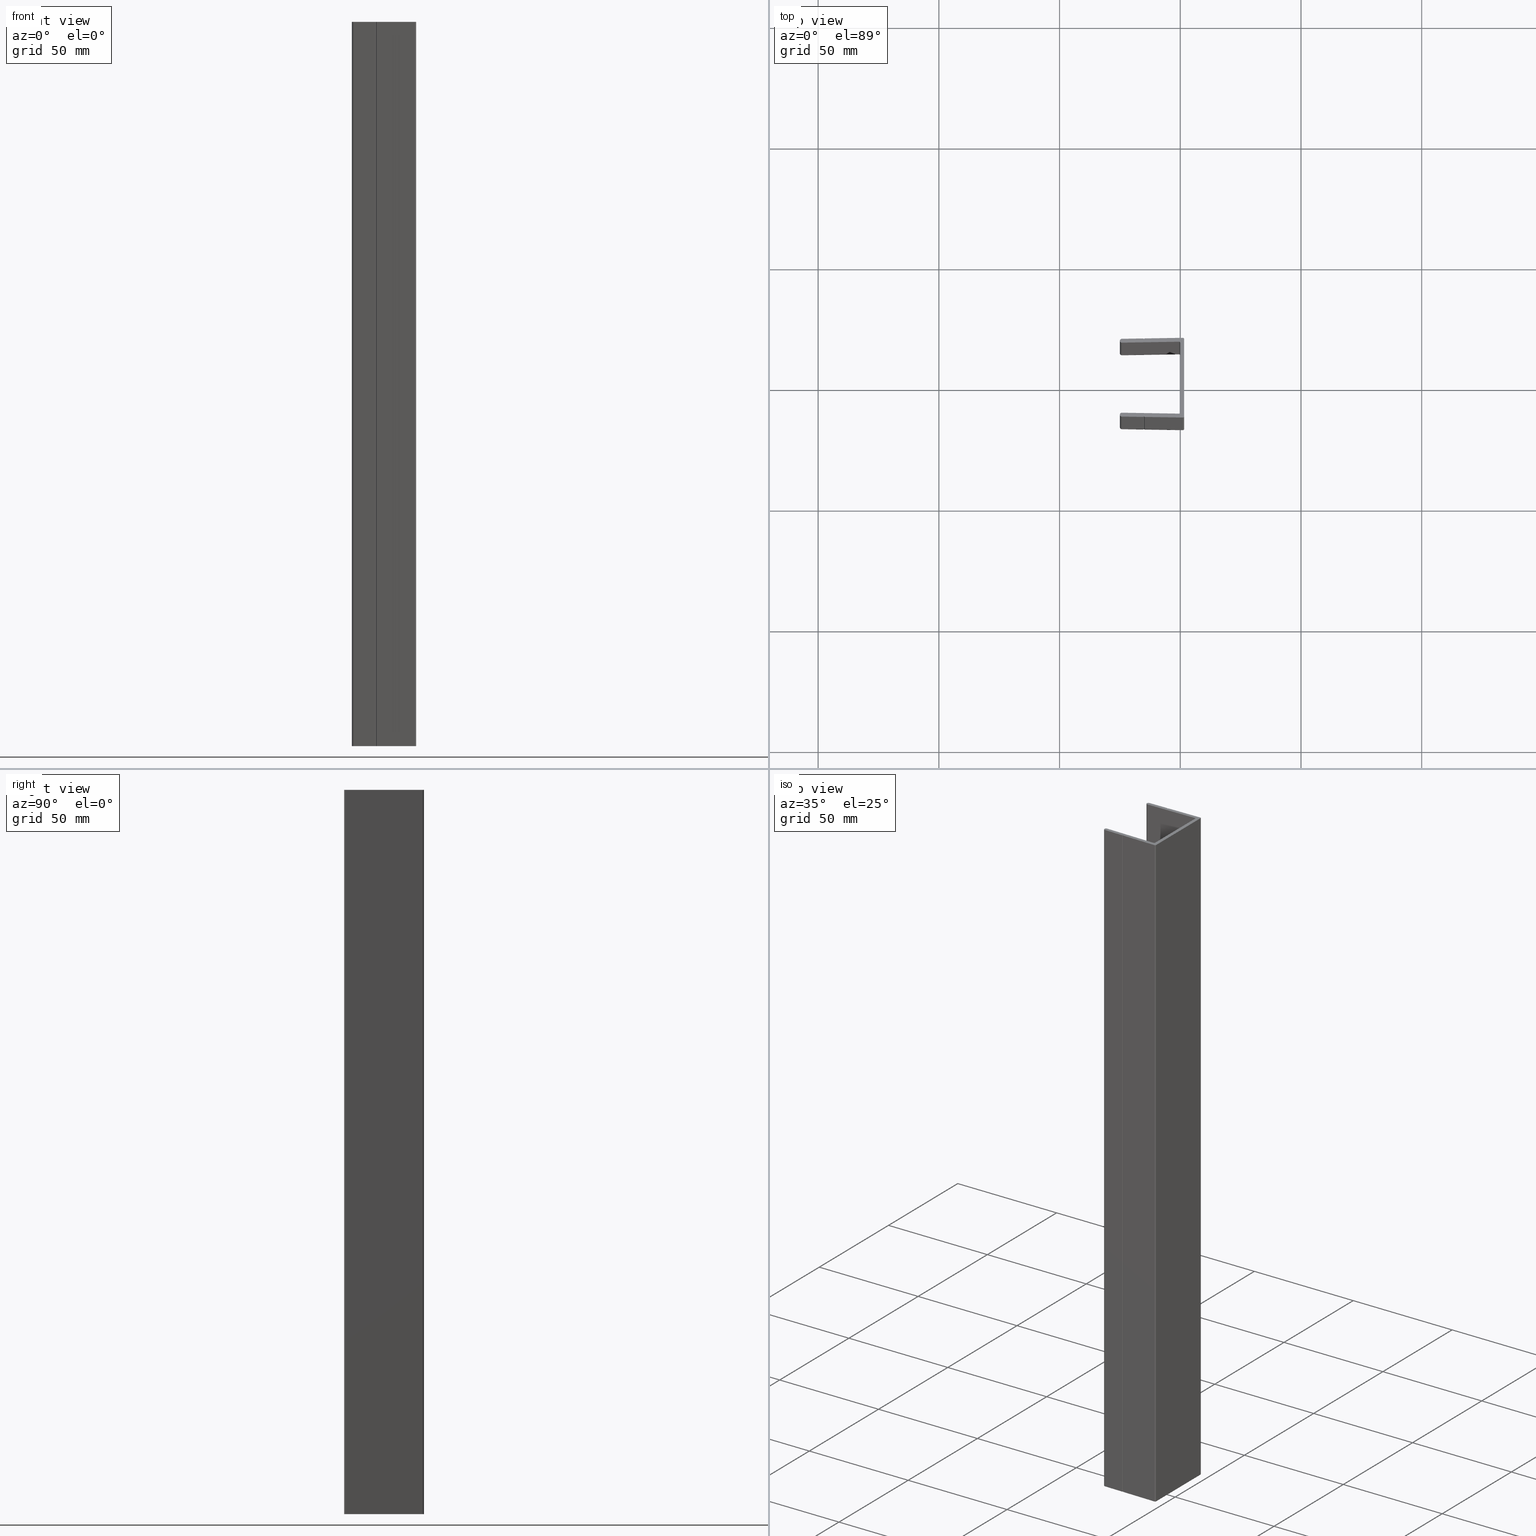
[diagram: canonical four-view strip — front | top / right | iso, engineering-drawing reading convention]
A machine part, canonical four-view strip (front | top / right | iso — engineering-drawing reading convention). The complete STEP part file that produces these views, byte-faithful:
ISO-10303-21;
HEADER;
FILE_DESCRIPTION (( 'STEP AP203' ),
    '1' );
FILE_NAME ('StyroCAP-LGE.STEP',
    '2014-01-11T05:47:41',
    ( 'John Massey' ),
    ( 'Microsoft' ),
    'SwSTEP 2.0',
    'SolidWorks 2014',
    '' );
FILE_SCHEMA (( 'CONFIG_CONTROL_DESIGN' ));
ENDSEC;

DATA;
#1 = CARTESIAN_POINT ( 'NONE',  ( -2.168404344971008900E-016, -14.39193600409547700, 150.0000000000000000 ) ) ;
#2 = DIRECTION ( 'NONE',  ( -0.0000000000000000000, -0.0000000000000000000, -1.000000000000000000 ) ) ;
#3 = EDGE_CURVE ( 'NONE', #352, #652, #717, .T. ) ;
#4 = LINE ( 'NONE', #424, #490 ) ;
#5 = CARTESIAN_POINT ( 'NONE',  ( -15.28087924239068100, 16.25591553212179000, -150.0009999999999800 ) ) ;
#6 = LINE ( 'NONE', #544, #686 ) ;
#7 = LINE ( 'NONE', #98, #314 ) ;
#8 = VERTEX_POINT ( 'NONE', #608 ) ;
#9 = EDGE_CURVE ( 'NONE', #227, #898, #52, .T. ) ;
#10 = EDGE_LOOP ( 'NONE', ( #507, #729, #358, #558 ) ) ;
#11 = DIRECTION ( 'NONE',  ( -0.6899356928479765100, -0.7238706650599833200, 0.0000000000000000000 ) ) ;
#12 = DIRECTION ( 'NONE',  ( -0.6899356928479695200, 0.7238706650599899800, 0.0000000000000000000 ) ) ;
#13 = DIRECTION ( 'NONE',  ( -0.0000000000000000000, -0.0000000000000000000, -1.000000000000000000 ) ) ;
#14 = CARTESIAN_POINT ( 'NONE',  ( -14.78087924239068100, 16.26391553212179300, 150.0000000000000000 ) ) ;
#15 = PLANE ( 'NONE',  #680 ) ;
#16 = CARTESIAN_POINT ( 'NONE',  ( -25.01290401842888400, -15.31290074225789900, 150.0000000000000000 ) ) ;
#17 = VERTEX_POINT ( 'NONE', #170 ) ;
#18 = DIRECTION ( 'NONE',  ( 1.836970198721029900E-016, -1.000000000000000000, -0.0000000000000000000 ) ) ;
#19 = EDGE_CURVE ( 'NONE', #8, #760, #6, .T. ) ;
#20 = CARTESIAN_POINT ( 'NONE',  ( -0.5079989761965659800, -14.89187201638085500, 150.0000000000000000 ) ) ;
#21 = CIRCLE ( 'NONE', #752, 0.5000000000000026600 ) ;
#22 = DIRECTION ( 'NONE',  ( -0.0000000000000000000, -0.0000000000000000000, -1.000000000000000000 ) ) ;
#23 = ORIENTED_EDGE ( 'NONE', *, *, #801, .F. ) ;
#24 = ORIENTED_EDGE ( 'NONE', *, *, #865, .T. ) ;
#25 = CARTESIAN_POINT ( 'NONE',  ( -0.5000000000000000000, -14.39193600409547700, 150.0000000000000000 ) ) ;
#26 = LOCAL_TIME ( 15, 47, 41.00000000000000000, #193 ) ;
#27 = DIRECTION ( 'NONE',  ( 1.000000000000000000, 0.0000000000000000000, 0.0000000000000000000 ) ) ;
#28 = EDGE_CURVE ( 'NONE', #185, #276, #183, .T. ) ;
#29 = EDGE_CURVE ( 'NONE', #200, #60, #491, .T. ) ;
#30 = LINE ( 'NONE', #885, #716 ) ;
#31 = FACE_OUTER_BOUND ( 'NONE', #519, .T. ) ;
#32 = CIRCLE ( 'NONE', #374, 0.7999999999999951600 ) ;
#33 = EDGE_CURVE ( 'NONE', #276, #652, #313, .T. ) ;
#34 = ORIENTED_EDGE ( 'NONE', *, *, #28, .F. ) ;
#35 = APPROVAL_STATUS ( 'not_yet_approved' ) ;
#36 = ADVANCED_FACE ( 'NONE', ( #31 ), #37, .F. ) ;
#37 = PLANE ( 'NONE',  #779 ) ;
#38 = CARTESIAN_POINT ( 'NONE',  ( -25.01280163808549500, 15.30010238034338800, -150.0000000000000000 ) ) ;
#39 = ORIENTED_EDGE ( 'NONE', *, *, #66, .T. ) ;
#40 = DIRECTION ( 'NONE',  ( -0.0000000000000000000, -0.0000000000000000000, -1.000000000000000000 ) ) ;
#41 = ADVANCED_FACE ( 'NONE', ( #471 ), #675, .F. ) ;
#42 = DIRECTION ( 'NONE',  ( -0.0000000000000000000, -0.0000000000000000000, -1.000000000000000000 ) ) ;
#43 = DIRECTION ( 'NONE',  ( -0.9998720245707583000, 0.01599795239313217500, 0.0000000000000000000 ) ) ;
#44 = ORIENTED_EDGE ( 'NONE', *, *, #852, .T. ) ;
#45 = FACE_OUTER_BOUND ( 'NONE', #566, .T. ) ;
#46 = CARTESIAN_POINT ( 'NONE',  ( -24.21290401842888700, -15.31290074225789900, -150.0000000000000000 ) ) ;
#47 = LOCAL_TIME ( 15, 47, 41.00000000000000000, #208 ) ;
#48 = ORIENTED_EDGE ( 'NONE', *, *, #915, .T. ) ;
#49 = ORIENTED_EDGE ( 'NONE', *, *, #871, .T. ) ;
#50 = ORIENTED_EDGE ( 'NONE', *, *, #827, .F. ) ;
#51 = CALENDAR_DATE ( 2014, 11, 1 ) ;
#52 = CIRCLE ( 'NONE', #787, 0.7999999999999951600 ) ;
#53 = DIRECTION ( 'NONE',  ( -0.6899356928479765100, 0.7238706650599833200, 0.0000000000000000000 ) ) ;
#54 = CIRCLE ( 'NONE', #663, 0.7999999999999986000 ) ;
#55 = ORIENTED_EDGE ( 'NONE', *, *, #858, .T. ) ;
#56 = VECTOR ( 'NONE', #22, 1000.000000000000000 ) ;
#57 = EDGE_LOOP ( 'NONE', ( #50, #63, #878, #142, #543, #55, #615, #778, #672, #875, #376, #541, #360, #857, #423, #317, #497, #904, #410, #247, #554, #309, #626, #219 ) ) ;
#58 = DIRECTION ( 'NONE',  ( 0.9998720245707583000, 0.01599795239313701200, 0.0000000000000000000 ) ) ;
#59 = DIRECTION ( 'NONE',  ( -0.0000000000000000000, -0.0000000000000000000, -1.000000000000000000 ) ) ;
#60 = VERTEX_POINT ( 'NONE', #335 ) ;
#61 = DIRECTION ( 'NONE',  ( 0.0000000000000000000, 0.0000000000000000000, 1.000000000000000000 ) ) ;
#62 = CC_DESIGN_APPROVAL ( #64, ( #606 ) ) ;
#63 = ORIENTED_EDGE ( 'NONE', *, *, #3, .F. ) ;
#64 = APPROVAL ( #690, 'UNSPECIFIED' ) ;
#65 = PERSON_AND_ORGANIZATION ( #746, #437 ) ;
#66 = EDGE_CURVE ( 'NONE', #221, #739, #139, .T. ) ;
#67 = VECTOR ( 'NONE', #575, 1000.000000000000000 ) ;
#68 = CALENDAR_DATE ( 2014, 11, 1 ) ;
#69 = ORIENTED_EDGE ( 'NONE', *, *, #844, .F. ) ;
#70 = EDGE_CURVE ( 'NONE', #898, #482, #896, .T. ) ;
#71 = DIRECTION ( 'NONE',  ( -0.01599795238676366900, 0.9998720245708601100, 0.0000000000000000000 ) ) ;
#72 = ORIENTED_EDGE ( 'NONE', *, *, #852, .F. ) ;
#73 = CARTESIAN_POINT ( 'NONE',  ( -25.01290401842888400, -15.31290074225789900, -150.0000000000000000 ) ) ;
#74 = CARTESIAN_POINT ( 'NONE',  ( 1.600000000000001600, -16.01794560409547000, 150.0000000000000000 ) ) ;
#75 = LINE ( 'NONE', #345, #218 ) ;
#76 = EDGE_LOOP ( 'NONE', ( #758, #414, #151, #251 ) ) ;
#77 = LINE ( 'NONE', #577, #528 ) ;
#78 = CARTESIAN_POINT ( 'NONE',  ( -15.28087924239068100, 16.25591553212179000, 150.0000000000000000 ) ) ;
#79 = CARTESIAN_POINT ( 'NONE',  ( 1.092001023803434100, 16.51788161638097600, 150.0000000000000000 ) ) ;
#80 = ORIENTED_EDGE ( 'NONE', *, *, #901, .F. ) ;
#81 = DIRECTION ( 'NONE',  ( -0.0000000000000000000, -0.0000000000000000000, 1.000000000000000000 ) ) ;
#82 = DIRECTION ( 'NONE',  ( 0.01599795238676366900, -0.9998720245708601100, -0.0000000000000000000 ) ) ;
#83 = ORIENTED_EDGE ( 'NONE', *, *, #915, .F. ) ;
#84 = VECTOR ( 'NONE', #644, 1000.000000000000100 ) ;
#85 = CARTESIAN_POINT ( 'NONE',  ( 1.100000000000000100, -16.01794560409547000, -150.0000000000000000 ) ) ;
#86 = LINE ( 'NONE', #552, #416 ) ;
#87 = DATE_AND_TIME ( #246, #418 ) ;
#88 = VERTEX_POINT ( 'NONE', #691 ) ;
#89 = CARTESIAN_POINT ( 'NONE',  ( -14.78087924239068100, 16.26391553212179300, -150.0009999999999800 ) ) ;
#90 = CARTESIAN_POINT ( 'NONE',  ( -0.5000000000000000000, -14.39193600409547700, -150.0000000000000000 ) ) ;
#91 = ORIENTED_EDGE ( 'NONE', *, *, #854, .T. ) ;
#92 = DIRECTION ( 'NONE',  ( -1.000000000000000000, 0.0000000000000000000, 0.0000000000000000000 ) ) ;
#93 = DIRECTION ( 'NONE',  ( 0.01599795239313701200, -0.9998720245707583000, 0.0000000000000000000 ) ) ;
#94 = ORIENTED_EDGE ( 'NONE', *, *, #811, .F. ) ;
#95 = DIRECTION ( 'NONE',  ( -1.000000000000000000, 0.0000000000000000000, 0.0000000000000000000 ) ) ;
#96 = CIRCLE ( 'NONE', #667, 0.8000000000000020400 ) ;
#97 = CARTESIAN_POINT ( 'NONE',  ( -24.21290401842889000, 15.31290074225789500, 150.0000000000000000 ) ) ;
#98 = CARTESIAN_POINT ( 'NONE',  ( -14.78087924239067300, -16.26391553212179300, -150.0009999999999800 ) ) ;
#99 = ORIENTED_EDGE ( 'NONE', *, *, #842, .T. ) ;
#100 = PLANE ( 'NONE',  #730 ) ;
#101 = CIRCLE ( 'NONE', #642, 0.4999999999999997800 ) ;
#102 = EDGE_LOOP ( 'NONE', ( #232, #584, #731, #224 ) ) ;
#103 = PERSON_AND_ORGANIZATION_ROLE ( 'creator' ) ;
#104 = DIRECTION ( 'NONE',  ( 0.0000000000000000000, 0.0000000000000000000, 1.000000000000000000 ) ) ;
#105 = DIRECTION ( 'NONE',  ( -0.9998720245707581900, -0.01599795239313700800, 0.0000000000000000000 ) ) ;
#106 = CLOSED_SHELL ( 'NONE', ( #782, #283, #41, #226, #535, #36, #112, #532, #420, #470, #594, #775, #695, #474, #161, #699, #341, #412, #107, #289, #163, #879, #344, #869, #228, #602 ) ) ;
#107 = ADVANCED_FACE ( 'NONE', ( #303 ), #595, .T. ) ;
#108 = VECTOR ( 'NONE', #2, 1000.000000000000000 ) ;
#109 = VECTOR ( 'NONE', #828, 1000.000000000000000 ) ;
#110 = PERSON_AND_ORGANIZATION ( #746, #437 ) ;
#111 = ORIENTED_EDGE ( 'NONE', *, *, #831, .F. ) ;
#112 = ADVANCED_FACE ( 'NONE', ( #450 ), #264, .T. ) ;
#113 = DIRECTION ( 'NONE',  ( 1.000000000000000000, 0.0000000000000000000, 0.0000000000000000000 ) ) ;
#114 = DIRECTION ( 'NONE',  ( 0.0000000000000000000, 0.0000000000000000000, 1.000000000000000000 ) ) ;
#115 = LINE ( 'NONE', #468, #583 ) ;
#116 = PRODUCT_DEFINITION_SHAPE ( 'NONE', 'NONE',  #631 ) ;
#117 = ORIENTED_EDGE ( 'NONE', *, *, #792, .F. ) ;
#118 = LINE ( 'NONE', #384, #428 ) ;
#119 = ORIENTED_EDGE ( 'NONE', *, *, #872, .F. ) ;
#120 = DIRECTION ( 'NONE',  ( -0.6899356928479696300, 0.7238706650599898700, -0.0000000000000000000 ) ) ;
#121 = CARTESIAN_POINT ( 'NONE',  ( -15.28087924239067300, -16.25591553212179000, -150.0009999999999800 ) ) ;
#122 = DIRECTION ( 'NONE',  ( -1.000000000000000000, 0.0000000000000000000, 0.0000000000000000000 ) ) ;
#123 = CARTESIAN_POINT ( 'NONE',  ( 1.092001023803435400, -16.51788161638085100, -150.0000000000000000 ) ) ;
#124 = DIRECTION ( 'NONE',  ( -1.000000000000000000, 0.0000000000000000000, 0.0000000000000000000 ) ) ;
#125 = VECTOR ( 'NONE', #443, 1000.000000000000000 ) ;
#126 = FACE_OUTER_BOUND ( 'NONE', #57, .T. ) ;
#127 = ORIENTED_EDGE ( 'NONE', *, *, #832, .F. ) ;
#128 = UNCERTAINTY_MEASURE_WITH_UNIT (LENGTH_MEASURE( 1.000000000000000100E-005 ), #331, 'distance_accuracy_value', 'NONE');
#129 = CARTESIAN_POINT ( 'NONE',  ( -14.78087924239067300, -16.26391553212179300, -150.0000000000000000 ) ) ;
#130 = CYLINDRICAL_SURFACE ( 'NONE', #688, 0.4999999999999998900 ) ;
#131 = CARTESIAN_POINT ( 'NONE',  ( -24.21290401842889000, 15.31290074225789500, 150.0000000000000000 ) ) ;
#132 = EDGE_LOOP ( 'NONE', ( #278, #723, #689, #213 ) ) ;
#133 = CIRCLE ( 'NONE', #646, 0.8000000000000020400 ) ;
#134 = ORIENTED_EDGE ( 'NONE', *, *, #793, .T. ) ;
#135 = DIRECTION ( 'NONE',  ( -0.0000000000000000000, -0.0000000000000000000, -1.000000000000000000 ) ) ;
#136 = ORIENTED_EDGE ( 'NONE', *, *, #837, .F. ) ;
#137 = CARTESIAN_POINT ( 'NONE',  ( -24.22570238034338900, -16.11279836191450000, 150.0000000000000000 ) ) ;
#138 = LINE ( 'NONE', #735, #448 ) ;
#139 = LINE ( 'NONE', #683, #623 ) ;
#140 = EDGE_LOOP ( 'NONE', ( #363, #694, #399, #166 ) ) ;
#141 = CARTESIAN_POINT ( 'NONE',  ( -25.01279836191450900, 15.29989761965660100, 150.0000000000000000 ) ) ;
#142 = ORIENTED_EDGE ( 'NONE', *, *, #851, .T. ) ;
#143 = DIRECTION ( 'NONE',  ( -0.0000000000000000000, -0.0000000000000000000, -1.000000000000000000 ) ) ;
#144 = CARTESIAN_POINT ( 'NONE',  ( -0.5079989761965714200, 14.89187201638085500, -150.0000000000000000 ) ) ;
#145 = DIRECTION ( 'NONE',  ( -1.000000000000000000, 0.0000000000000000000, 0.0000000000000000000 ) ) ;
#146 = DIRECTION ( 'NONE',  ( -0.0000000000000000000, -0.0000000000000000000, -1.000000000000000000 ) ) ;
#147 = DIRECTION ( 'NONE',  ( -0.0000000000000000000, -0.0000000000000000000, -1.000000000000000000 ) ) ;
#148 = CARTESIAN_POINT ( 'NONE',  ( -2.168404344971008900E-016, -14.39193600409547700, 150.0000000000000000 ) ) ;
#149 = FACE_OUTER_BOUND ( 'NONE', #140, .T. ) ;
#150 = CARTESIAN_POINT ( 'NONE',  ( 1.100000000000000100, -16.01794560409547000, 150.0000000000000000 ) ) ;
#151 = ORIENTED_EDGE ( 'NONE', *, *, #858, .F. ) ;
#152 = ORIENTED_EDGE ( 'NONE', *, *, #70, .F. ) ;
#153 = DIRECTION ( 'NONE',  ( -0.0000000000000000000, -0.0000000000000000000, 1.000000000000000000 ) ) ;
#154 = DIRECTION ( 'NONE',  ( -0.6899356928479695200, -0.7238706650599899800, 0.0000000000000000000 ) ) ;
#155 = DIRECTION ( 'NONE',  ( 1.000000000000000000, 0.0000000000000000000, 0.0000000000000000000 ) ) ;
#156 = VECTOR ( 'NONE', #430, 1000.000000000000000 ) ;
#157 = SECURITY_CLASSIFICATION_LEVEL ( 'unclassified' ) ;
#158 = DIRECTION ( 'NONE',  ( 0.01599795239313217500, 0.9998720245707583000, -0.0000000000000000000 ) ) ;
#159 = VECTOR ( 'NONE', #154, 1000.000000000000000 ) ;
#160 = ORIENTED_EDGE ( 'NONE', *, *, #254, .T. ) ;
#161 = ADVANCED_FACE ( 'NONE', ( #287 ), #812, .F. ) ;
#162 = ORIENTED_EDGE ( 'NONE', *, *, #913, .F. ) ;
#163 = ADVANCED_FACE ( 'NONE', ( #126 ), #489, .T. ) ;
#164 = CARTESIAN_POINT ( 'NONE',  ( -25.01290401842889100, 15.31290074225789500, 150.0000000000000000 ) ) ;
#165 = PLANE ( 'NONE',  #724 ) ;
#166 = ORIENTED_EDGE ( 'NONE', *, *, #900, .T. ) ;
#167 = DIRECTION ( 'NONE',  ( -0.01599795237023275700, -0.9998720245711246700, 0.0000000000000000000 ) ) ;
#168 = FACE_OUTER_BOUND ( 'NONE', #339, .T. ) ;
#169 = VERTEX_POINT ( 'NONE', #172 ) ;
#170 = CARTESIAN_POINT ( 'NONE',  ( -24.20010238034338800, 14.51279836191450600, 150.0000000000000000 ) ) ;
#171 = CARTESIAN_POINT ( 'NONE',  ( -15.28087924239067300, -16.25591553212179000, 150.0000000000000000 ) ) ;
#172 = CARTESIAN_POINT ( 'NONE',  ( -2.168404344971008900E-016, -14.39193600409547700, -150.0000000000000000 ) ) ;
#173 = ORIENTED_EDGE ( 'NONE', *, *, #917, .T. ) ;
#174 = ORIENTED_EDGE ( 'NONE', *, *, #882, .F. ) ;
#175 = CARTESIAN_POINT ( 'NONE',  ( -24.21290401842888700, -15.31290074225789900, 150.0000000000000000 ) ) ;
#176 = CARTESIAN_POINT ( 'NONE',  ( -25.01280163808549500, 15.30010238034338800, 150.0000000000000000 ) ) ;
#177 = CARTESIAN_POINT ( 'NONE',  ( 1.600000000000002500, 16.01794560409559100, -150.0000000000000000 ) ) ;
#178 = DIRECTION ( 'NONE',  ( 1.000000000000000000, 0.0000000000000000000, 0.0000000000000000000 ) ) ;
#179 = PLANE ( 'NONE',  #763 ) ;
#180 = DIRECTION ( 'NONE',  ( -1.000000000000000000, 0.0000000000000000000, 0.0000000000000000000 ) ) ;
#181 = VECTOR ( 'NONE', #546, 1000.000000000000000 ) ;
#182 = CARTESIAN_POINT ( 'NONE',  ( -24.21290401842888700, -15.31290074225789900, 150.0000000000000000 ) ) ;
#183 = LINE ( 'NONE', #296, #336 ) ;
#184 = LINE ( 'NONE', #581, #687 ) ;
#185 = VERTEX_POINT ( 'NONE', #425 ) ;
#186 = EDGE_LOOP ( 'NONE', ( #234, #23, #916, #419 ) ) ;
#187 = ORIENTED_EDGE ( 'NONE', *, *, #3, .T. ) ;
#188 = CYLINDRICAL_SURFACE ( 'NONE', #733, 0.8000000000000020400 ) ;
#189 = PERSON_AND_ORGANIZATION ( #746, #437 ) ;
#190 = EDGE_LOOP ( 'NONE', ( #434, #24, #160, #564 ) ) ;
#191 = ORIENTED_EDGE ( 'NONE', *, *, #866, .F. ) ;
#192 = ORIENTED_EDGE ( 'NONE', *, *, #872, .T. ) ;
#193 = COORDINATED_UNIVERSAL_TIME_OFFSET ( 10, 0, .AHEAD. ) ;
#194 = ORIENTED_EDGE ( 'NONE', *, *, #257, .F. ) ;
#195 = LINE ( 'NONE', #483, #181 ) ;
#196 = DIRECTION ( 'NONE',  ( -1.317841821496351000E-016, 1.000000000000000000, -0.0000000000000000000 ) ) ;
#197 = CARTESIAN_POINT ( 'NONE',  ( -0.5079989761965659800, -14.89187201638085500, -150.0000000000000000 ) ) ;
#198 = ORIENTED_EDGE ( 'NONE', *, *, #832, .T. ) ;
#199 = LINE ( 'NONE', #215, #718 ) ;
#200 = VERTEX_POINT ( 'NONE', #618 ) ;
#201 = ORIENTED_EDGE ( 'NONE', *, *, #243, .T. ) ;
#202 = DIRECTION ( 'NONE',  ( 0.01599795238676366900, -0.9998720245708601100, -0.0000000000000000000 ) ) ;
#203 = CARTESIAN_POINT ( 'NONE',  ( -25.01279836191450900, 15.29989761965660100, -150.0000000000000000 ) ) ;
#204 = VERTEX_POINT ( 'NONE', #484 ) ;
#205 = PLANE ( 'NONE',  #643 ) ;
#206 = CARTESIAN_POINT ( 'NONE',  ( -25.01279836191450900, 15.29989761965660100, 150.0000000000000000 ) ) ;
#207 = FACE_OUTER_BOUND ( 'NONE', #298, .T. ) ;
#208 = COORDINATED_UNIVERSAL_TIME_OFFSET ( 10, 0, .AHEAD. ) ;
#209 = VERTEX_POINT ( 'NONE', #176 ) ;
#210 = DIRECTION ( 'NONE',  ( 0.9998720245707583000, 0.01599795239313215800, -0.0000000000000000000 ) ) ;
#211 = PLANE ( 'NONE',  #685 ) ;
#212 = VERTEX_POINT ( 'NONE', #553 ) ;
#213 = ORIENTED_EDGE ( 'NONE', *, *, #815, .F. ) ;
#214 = DIRECTION ( 'NONE',  ( 0.0000000000000000000, 0.0000000000000000000, 1.000000000000000000 ) ) ;
#215 = CARTESIAN_POINT ( 'NONE',  ( -25.01280163808548800, -15.30010238034339100, 150.0000000000000000 ) ) ;
#216 = LOCAL_TIME ( 15, 47, 41.00000000000000000, #371 ) ;
#217 = CARTESIAN_POINT ( 'NONE',  ( -15.02288026619413200, 16.01001151778866900, -150.0000000000000000 ) ) ;
#218 = VECTOR ( 'NONE', #167, 1000.000000000000100 ) ;
#219 = ORIENTED_EDGE ( 'NONE', *, *, #841, .T. ) ;
#220 = LINE ( 'NONE', #849, #56 ) ;
#221 = VERTEX_POINT ( 'NONE', #796 ) ;
#222 = PERSON_AND_ORGANIZATION_ROLE ( 'design_owner' ) ;
#223 = DIRECTION ( 'NONE',  ( -0.0000000000000000000, -0.0000000000000000000, -1.000000000000000000 ) ) ;
#224 = ORIENTED_EDGE ( 'NONE', *, *, #259, .T. ) ;
#225 = DATE_TIME_ROLE ( 'classification_date' ) ;
#226 = ADVANCED_FACE ( 'NONE', ( #436 ), #179, .F. ) ;
#227 = VERTEX_POINT ( 'NONE', #807 ) ;
#228 = ADVANCED_FACE ( 'NONE', ( #245 ), #890, .F. ) ;
#229 = FACE_OUTER_BOUND ( 'NONE', #190, .T. ) ;
#230 = LINE ( 'NONE', #1, #538 ) ;
#231 = LOCAL_TIME ( 15, 47, 41.00000000000000000, #388 ) ;
#232 = ORIENTED_EDGE ( 'NONE', *, *, #894, .T. ) ;
#233 = VERTEX_POINT ( 'NONE', #237 ) ;
#234 = ORIENTED_EDGE ( 'NONE', *, *, #905, .T. ) ;
#235 = CARTESIAN_POINT ( 'NONE',  ( -24.21290401842888700, -15.31290074225789900, 150.0000000000000000 ) ) ;
#236 = VERTEX_POINT ( 'NONE', #123 ) ;
#237 = CARTESIAN_POINT ( 'NONE',  ( -24.22570238034339200, 16.11279836191450300, -150.0000000000000000 ) ) ;
#238 = CIRCLE ( 'NONE', #666, 0.7999999999999951600 ) ;
#239 = VERTEX_POINT ( 'NONE', #488 ) ;
#240 = LINE ( 'NONE', #271, #768 ) ;
#241 = CARTESIAN_POINT ( 'NONE',  ( 0.0000000000000000000, -16.50040959999999400, 150.0000000000000000 ) ) ;
#242 = VERTEX_POINT ( 'NONE', #356 ) ;
#243 = EDGE_CURVE ( 'NONE', #276, #499, #783, .T. ) ;
#244 = LINE ( 'NONE', #380, #385 ) ;
#245 = FACE_OUTER_BOUND ( 'NONE', #759, .T. ) ;
#246 = CALENDAR_DATE ( 2014, 11, 1 ) ;
#247 = ORIENTED_EDGE ( 'NONE', *, *, #808, .T. ) ;
#248 = CARTESIAN_POINT ( 'NONE',  ( -24.21290074225789700, -15.31269598157111400, 150.0000000000000000 ) ) ;
#249 = DIRECTION ( 'NONE',  ( -0.0000000000000000000, -0.0000000000000000000, 1.000000000000000000 ) ) ;
#250 = VECTOR ( 'NONE', #40, 1000.000000000000000 ) ;
#251 = ORIENTED_EDGE ( 'NONE', *, *, #382, .T. ) ;
#252 = EDGE_CURVE ( 'NONE', #518, #212, #86, .T. ) ;
#253 = LINE ( 'NONE', #455, #803 ) ;
#254 = EDGE_CURVE ( 'NONE', #481, #8, #839, .T. ) ;
#255 = CARTESIAN_POINT ( 'NONE',  ( -15.02288026619412200, -16.01001151778866900, -150.0000000000000000 ) ) ;
#256 = ORIENTED_EDGE ( 'NONE', *, *, #883, .F. ) ;
#257 = EDGE_CURVE ( 'NONE', #536, #708, #386, .T. ) ;
#258 = CARTESIAN_POINT ( 'NONE',  ( 1.099999999999999900, 16.01794560409559100, 150.0000000000000000 ) ) ;
#259 = EDGE_CURVE ( 'NONE', #727, #169, #230, .T. ) ;
#260 = PLANE ( 'NONE',  #647 ) ;
#261 = ORIENTED_EDGE ( 'NONE', *, *, #871, .F. ) ;
#262 = LINE ( 'NONE', #446, #570 ) ;
#263 = DIRECTION ( 'NONE',  ( 0.0000000000000000000, 0.0000000000000000000, 1.000000000000000000 ) ) ;
#264 = CYLINDRICAL_SURFACE ( 'NONE', #771, 0.5000000000000025500 ) ;
#265 = PERSON_AND_ORGANIZATION ( #746, #437 ) ;
#266 = ORIENTED_EDGE ( 'NONE', *, *, #848, .T. ) ;
#267 = CARTESIAN_POINT ( 'NONE',  ( -24.21290074225790100, 15.31269598157111400, -150.0000000000000000 ) ) ;
#268 = MANIFOLD_SOLID_BREP ( 'Cut-Extrude1', #106 ) ;
#269 = CARTESIAN_POINT ( 'NONE',  ( -15.02288026619412500, -16.01001151778866900, 150.0000000000000000 ) ) ;
#270 = DIRECTION ( 'NONE',  ( 0.9998720245711246700, -0.01599795237023275700, 0.0000000000000000000 ) ) ;
#271 = CARTESIAN_POINT ( 'NONE',  ( -0.5079989761965659800, -14.89187201638085500, -150.0000000000000000 ) ) ;
#272 = CARTESIAN_POINT ( 'NONE',  ( 6.036150118630527200E-017, -14.39193600409547700, 150.0000000000000000 ) ) ;
#273 = CARTESIAN_POINT ( 'NONE',  ( -24.21290074225789700, -15.31269598157111400, -150.0000000000000000 ) ) ;
#274 = CYLINDRICAL_SURFACE ( 'NONE', #676, 0.7999999999999951600 ) ;
#275 = CARTESIAN_POINT ( 'NONE',  ( 0.0000000000000000000, 0.0000000000000000000, 0.0000000000000000000 ) ) ;
#276 = VERTEX_POINT ( 'NONE', #255 ) ;
#277 = LINE ( 'NONE', #272, #406 ) ;
#278 = ORIENTED_EDGE ( 'NONE', *, *, #861, .F. ) ;
#279 = CARTESIAN_POINT ( 'NONE',  ( -24.20010238034338800, -14.51279836191450600, 150.0000000000000000 ) ) ;
#280 = DIRECTION ( 'NONE',  ( 0.0000000000000000000, 0.0000000000000000000, 1.000000000000000000 ) ) ;
#281 = DIRECTION ( 'NONE',  ( 0.7238706650599899800, -0.6899356928479695200, 0.0000000000000000000 ) ) ;
#282 = APPLICATION_PROTOCOL_DEFINITION ( 'international standard', 'config_control_design', 1994, #682 ) ;
#283 = ADVANCED_FACE ( 'NONE', ( #756 ), #725, .T. ) ;
#284 = APPROVAL_ROLE ( '' ) ;
#285 = CARTESIAN_POINT ( 'NONE',  ( -24.21290074225790100, 15.31269598157111400, 150.0000000000000000 ) ) ;
#286 = LINE ( 'NONE', #74, #593 ) ;
#287 = FACE_OUTER_BOUND ( 'NONE', #102, .T. ) ;
#288 = ORIENTED_EDGE ( 'NONE', *, *, #815, .T. ) ;
#289 = ADVANCED_FACE ( 'NONE', ( #365 ), #640, .F. ) ;
#290 = DIRECTION ( 'NONE',  ( 0.0000000000000000000, 0.0000000000000000000, 1.000000000000000000 ) ) ;
#291 = CARTESIAN_POINT ( 'NONE',  ( -14.78087924239067300, -16.26391553212179300, 150.0000000000000000 ) ) ;
#292 = VERTEX_POINT ( 'NONE', #561 ) ;
#293 = DIRECTION ( 'NONE',  ( 0.0000000000000000000, 0.0000000000000000000, 1.000000000000000000 ) ) ;
#294 = ORIENTED_EDGE ( 'NONE', *, *, #868, .F. ) ;
#295 = VECTOR ( 'NONE', #105, 1000.000000000000100 ) ;
#296 = CARTESIAN_POINT ( 'NONE',  ( -15.28087924239067300, -16.25591553212179000, -150.0000000000000000 ) ) ;
#297 = DIRECTION ( 'NONE',  ( 1.000000000000000000, 0.0000000000000000000, 0.0000000000000000000 ) ) ;
#298 = EDGE_LOOP ( 'NONE', ( #367, #343, #826, #814 ) ) ;
#299 = FACE_OUTER_BOUND ( 'NONE', #326, .T. ) ;
#300 = ORIENTED_EDGE ( 'NONE', *, *, #818, .F. ) ;
#301 = CARTESIAN_POINT ( 'NONE',  ( -24.21290401842889000, 15.31290074225789500, -150.0000000000000000 ) ) ;
#302 = LINE ( 'NONE', #89, #870 ) ;
#303 = FACE_OUTER_BOUND ( 'NONE', #548, .T. ) ;
#304 = ORIENTED_EDGE ( 'NONE', *, *, #794, .T. ) ;
#305 = ORIENTED_EDGE ( 'NONE', *, *, #837, .T. ) ;
#306 = DIRECTION ( 'NONE',  ( -1.836970198721029900E-016, 1.000000000000000000, 0.0000000000000000000 ) ) ;
#307 = CYLINDRICAL_SURFACE ( 'NONE', #702, 0.4999999999999996700 ) ;
#308 = ORIENTED_EDGE ( 'NONE', *, *, #257, .T. ) ;
#309 = ORIENTED_EDGE ( 'NONE', *, *, #9, .T. ) ;
#310 = DIRECTION ( 'NONE',  ( 0.0000000000000000000, 0.0000000000000000000, 1.000000000000000000 ) ) ;
#311 = DIRECTION ( 'NONE',  ( 1.000000000000000000, 0.0000000000000000000, 0.0000000000000000000 ) ) ;
#312 = LINE ( 'NONE', #121, #469 ) ;
#313 = LINE ( 'NONE', #408, #651 ) ;
#314 = VECTOR ( 'NONE', #153, 1000.000000000000000 ) ;
#315 = ORIENTED_EDGE ( 'NONE', *, *, #817, .F. ) ;
#316 = CARTESIAN_POINT ( 'NONE',  ( -24.21290401842889000, 15.31290074225789500, 150.0000000000000000 ) ) ;
#317 = ORIENTED_EDGE ( 'NONE', *, *, #883, .T. ) ;
#318 = CARTESIAN_POINT ( 'NONE',  ( -24.22570238034338900, -16.11279836191450000, -150.0000000000000000 ) ) ;
#319 = DIRECTION ( 'NONE',  ( -0.0000000000000000000, -0.0000000000000000000, -1.000000000000000000 ) ) ;
#320 = DIRECTION ( 'NONE',  ( -1.000000000000000000, 0.0000000000000000000, 0.0000000000000000000 ) ) ;
#321 = EDGE_LOOP ( 'NONE', ( #201, #48, #187, #589 ) ) ;
#322 = DIRECTION ( 'NONE',  ( 1.836970198721029900E-016, -1.000000000000000000, -0.0000000000000000000 ) ) ;
#323 = FACE_OUTER_BOUND ( 'NONE', #516, .T. ) ;
#324 = ORIENTED_EDGE ( 'NONE', *, *, #816, .F. ) ;
#325 = DIRECTION ( 'NONE',  ( 1.000000000000000000, 0.0000000000000000000, 0.0000000000000000000 ) ) ;
#326 = EDGE_LOOP ( 'NONE', ( #368, #34, #441, #94, #162, #324, #369, #80, #785, #383, #891, #540, #511, #119, #111, #261, #191, #315, #802, #789, #550, #887, #673, #361 ) ) ;
#327 = EDGE_LOOP ( 'NONE', ( #530, #294, #288, #49 ) ) ;
#328 = DIRECTION ( 'NONE',  ( 1.000000000000000000, 0.0000000000000000000, 0.0000000000000000000 ) ) ;
#329 = CARTESIAN_POINT ( 'NONE',  ( -24.22570238034338900, -16.11279836191450000, -150.0000000000000000 ) ) ;
#330 = APPROVAL_DATE_TIME ( #501, #64 ) ;
#331 =( LENGTH_UNIT ( ) NAMED_UNIT ( * ) SI_UNIT ( .MILLI., .METRE. ) );
#332 = DIRECTION ( 'NONE',  ( -0.0000000000000000000, -0.0000000000000000000, -1.000000000000000000 ) ) ;
#333 = CIRCLE ( 'NONE', #659, 0.7999999999999986000 ) ;
#334 = APPROVAL_ROLE ( '' ) ;
#335 = CARTESIAN_POINT ( 'NONE',  ( -15.02288026619412900, 16.01001151778866200, -150.0000000000000000 ) ) ;
#336 = VECTOR ( 'NONE', #429, 1000.000000000000000 ) ;
#337 = VECTOR ( 'NONE', #398, 1000.000000000000100 ) ;
#338 = ORIENTED_EDGE ( 'NONE', *, *, #877, .T. ) ;
#339 = EDGE_LOOP ( 'NONE', ( #192, #750, #840, #198 ) ) ;
#340 = DIRECTION ( 'NONE',  ( -1.000000000000000000, 0.0000000000000000000, 0.0000000000000000000 ) ) ;
#341 = ADVANCED_FACE ( 'NONE', ( #572 ), #188, .T. ) ;
#342 = DIRECTION ( 'NONE',  ( -0.9998720245707583000, -0.01599795239313215800, 0.0000000000000000000 ) ) ;
#343 = ORIENTED_EDGE ( 'NONE', *, *, #830, .T. ) ;
#344 = ADVANCED_FACE ( 'NONE', ( #207 ), #100, .F. ) ;
#345 = CARTESIAN_POINT ( 'NONE',  ( -25.01279836191450600, -15.29989761965661000, -150.0000000000000000 ) ) ;
#346 = LINE ( 'NONE', #465, #704 ) ;
#347 = APPROVAL_DATE_TIME ( #515, #621 ) ;
#348 = EDGE_LOOP ( 'NONE', ( #492, #99, #69, #444 ) ) ;
#349 = ORIENTED_EDGE ( 'NONE', *, *, #841, .F. ) ;
#350 = DIRECTION ( 'NONE',  ( -0.0000000000000000000, -0.0000000000000000000, -1.000000000000000000 ) ) ;
#351 = APPROVAL_PERSON_ORGANIZATION ( #522, #64, #284 ) ;
#352 = VERTEX_POINT ( 'NONE', #291 ) ;
#353 = DIRECTION ( 'NONE',  ( 1.000000000000000000, 0.0000000000000000000, 0.0000000000000000000 ) ) ;
#354 = CARTESIAN_POINT ( 'NONE',  ( 1.092001023803434100, 16.51788161638097600, 150.0000000000000000 ) ) ;
#355 = LINE ( 'NONE', #171, #764 ) ;
#356 = CARTESIAN_POINT ( 'NONE',  ( 1.600000000000001600, -16.01794560409547000, -150.0000000000000000 ) ) ;
#357 = DIRECTION ( 'NONE',  ( 1.000000000000000000, 0.0000000000000000000, -0.0000000000000000000 ) ) ;
#358 = ORIENTED_EDGE ( 'NONE', *, *, #912, .F. ) ;
#359 = CIRCLE ( 'NONE', #638, 0.4999999999999997800 ) ;
#360 = ORIENTED_EDGE ( 'NONE', *, *, #876, .T. ) ;
#361 = ORIENTED_EDGE ( 'NONE', *, *, #917, .F. ) ;
#362 = CARTESIAN_POINT ( 'NONE',  ( 1.100000000000000100, -16.01794560409547000, 150.0000000000000000 ) ) ;
#363 = ORIENTED_EDGE ( 'NONE', *, *, #901, .T. ) ;
#364 = LINE ( 'NONE', #510, #909 ) ;
#365 = FACE_OUTER_BOUND ( 'NONE', #805, .T. ) ;
#366 = APPROVAL_PERSON_ORGANIZATION ( #539, #621, #467 ) ;
#367 = ORIENTED_EDGE ( 'NONE', *, *, #29, .T. ) ;
#368 = ORIENTED_EDGE ( 'NONE', *, *, #243, .F. ) ;
#369 = ORIENTED_EDGE ( 'NONE', *, *, #905, .F. ) ;
#370 = DIRECTION ( 'NONE',  ( 0.9998720245708602200, 0.01599795238676367200, -0.0000000000000000000 ) ) ;
#371 = COORDINATED_UNIVERSAL_TIME_OFFSET ( 10, 0, .AHEAD. ) ;
#372 = CARTESIAN_POINT ( 'NONE',  ( 1.092001023803434100, 16.51788161638097600, 150.0000000000000000 ) ) ;
#373 =( GEOMETRIC_REPRESENTATION_CONTEXT ( 3 ) GLOBAL_UNCERTAINTY_ASSIGNED_CONTEXT ( ( #128 ) ) GLOBAL_UNIT_ASSIGNED_CONTEXT ( ( #331, #863, #407 ) ) REPRESENTATION_CONTEXT ( 'NONE', 'WORKASPACE' ) );
#374 = AXIS2_PLACEMENT_3D ( 'NONE', #860, #401, #27 ) ;
#375 = LINE ( 'NONE', #705, #738 ) ;
#376 = ORIENTED_EDGE ( 'NONE', *, *, #868, .T. ) ;
#377 = VECTOR ( 'NONE', #754, 1000.000000000000000 ) ;
#378 = ORIENTED_EDGE ( 'NONE', *, *, #33, .T. ) ;
#379 = VERTEX_POINT ( 'NONE', #38 ) ;
#380 = CARTESIAN_POINT ( 'NONE',  ( -15.28087924239068100, 16.25591553212179000, -150.0009999999999800 ) ) ;
#381 = DIRECTION ( 'NONE',  ( 1.000000000000000000, 0.0000000000000000000, 0.0000000000000000000 ) ) ;
#382 = EDGE_CURVE ( 'NONE', #212, #574, #346, .T. ) ;
#383 = ORIENTED_EDGE ( 'NONE', *, *, #884, .F. ) ;
#384 = CARTESIAN_POINT ( 'NONE',  ( -0.5079989761965714200, 14.89187201638085500, 150.0000000000000000 ) ) ;
#385 = VECTOR ( 'NONE', #81, 1000.000000000000000 ) ;
#386 = LINE ( 'NONE', #137, #67 ) ;
#387 = EDGE_CURVE ( 'NONE', #574, #611, #21, .T. ) ;
#388 = COORDINATED_UNIVERSAL_TIME_OFFSET ( 10, 0, .AHEAD. ) ;
#389 = CARTESIAN_POINT ( 'NONE',  ( -25.01279836191450600, -15.29989761965661000, -150.0000000000000000 ) ) ;
#390 = ORIENTED_EDGE ( 'NONE', *, *, #893, .F. ) ;
#391 = DIRECTION ( 'NONE',  ( 1.000000000000000000, 0.0000000000000000000, -0.0000000000000000000 ) ) ;
#392 = CARTESIAN_POINT ( 'NONE',  ( -15.02288026619412500, -16.01001151778866900, -150.0009999999999800 ) ) ;
#393 = ORIENTED_EDGE ( 'NONE', *, *, #793, .F. ) ;
#394 = CARTESIAN_POINT ( 'NONE',  ( -25.01279836191450600, -15.29989761965661000, 150.0000000000000000 ) ) ;
#395 = DIRECTION ( 'NONE',  ( -0.0000000000000000000, -0.0000000000000000000, -1.000000000000000000 ) ) ;
#396 = DIRECTION ( 'NONE',  ( -1.000000000000000000, 0.0000000000000000000, 0.0000000000000000000 ) ) ;
#397 = CARTESIAN_POINT ( 'NONE',  ( 1.092001023803434100, 16.51788161638097600, 150.0000000000000000 ) ) ;
#398 = DIRECTION ( 'NONE',  ( -0.01599795237023275700, -0.9998720245711246700, 0.0000000000000000000 ) ) ;
#399 = ORIENTED_EDGE ( 'NONE', *, *, #903, .F. ) ;
#400 = CARTESIAN_POINT ( 'NONE',  ( -0.5079989761965714200, 14.89187201638085500, 150.0000000000000000 ) ) ;
#401 = DIRECTION ( 'NONE',  ( 0.0000000000000000000, 0.0000000000000000000, 1.000000000000000000 ) ) ;
#402 = CARTESIAN_POINT ( 'NONE',  ( -24.22570238034338900, -16.11279836191450000, 150.0000000000000000 ) ) ;
#403 = DIRECTION ( 'NONE',  ( 0.6899356928479695200, 0.7238706650599899800, 0.0000000000000000000 ) ) ;
#404 = VECTOR ( 'NONE', #596, 1000.000000000000000 ) ;
#405 = ORIENTED_EDGE ( 'NONE', *, *, #880, .T. ) ;
#406 = VECTOR ( 'NONE', #322, 1000.000000000000000 ) ;
#407 =( NAMED_UNIT ( * ) SI_UNIT ( $, .STERADIAN. ) SOLID_ANGLE_UNIT ( ) );
#408 = CARTESIAN_POINT ( 'NONE',  ( -15.02288026619412500, -16.01001151778866900, -150.0009999999999800 ) ) ;
#409 = CARTESIAN_POINT ( 'NONE',  ( -15.02288026619413200, 16.01001151778866900, -150.0009999999999800 ) ) ;
#410 = ORIENTED_EDGE ( 'NONE', *, *, #903, .T. ) ;
#411 = DATE_TIME_ROLE ( 'creation_date' ) ;
#412 = ADVANCED_FACE ( 'NONE', ( #514 ), #165, .F. ) ;
#413 = DIRECTION ( 'NONE',  ( -0.0000000000000000000, -0.0000000000000000000, -1.000000000000000000 ) ) ;
#414 = ORIENTED_EDGE ( 'NONE', *, *, #845, .F. ) ;
#415 = LINE ( 'NONE', #79, #84 ) ;
#416 = VECTOR ( 'NONE', #196, 1000.000000000000000 ) ;
#417 = CARTESIAN_POINT ( 'NONE',  ( -0.5000000000000053300, 14.39193600409547700, -150.0000000000000000 ) ) ;
#418 = LOCAL_TIME ( 15, 47, 41.00000000000000000, #573 ) ;
#419 = ORIENTED_EDGE ( 'NONE', *, *, #902, .T. ) ;
#420 = ADVANCED_FACE ( 'NONE', ( #496 ), #668, .T. ) ;
#421 = CARTESIAN_POINT ( 'NONE',  ( -24.22570238034339200, 16.11279836191450300, 150.0000000000000000 ) ) ;
#422 = CARTESIAN_POINT ( 'NONE',  ( -24.21290401842888700, -15.31290074225789900, 150.0000000000000000 ) ) ;
#423 = ORIENTED_EDGE ( 'NONE', *, *, #882, .T. ) ;
#424 = CARTESIAN_POINT ( 'NONE',  ( -25.01280163808549500, 15.30010238034338800, 150.0000000000000000 ) ) ;
#425 = CARTESIAN_POINT ( 'NONE',  ( -15.28087924239067300, -16.25591553212174000, -150.0000000000000000 ) ) ;
#426 = CIRCLE ( 'NONE', #671, 0.4999999999999997800 ) ;
#427 = VERTEX_POINT ( 'NONE', #279 ) ;
#428 = VECTOR ( 'NONE', #210, 1000.000000000000100 ) ;
#429 = DIRECTION ( 'NONE',  ( 0.7238706650599833200, 0.6899356928479765100, 0.0000000000000000000 ) ) ;
#430 = DIRECTION ( 'NONE',  ( 0.9998720245707583000, -0.01599795239313217500, 0.0000000000000000000 ) ) ;
#431 = VERTEX_POINT ( 'NONE', #761 ) ;
#432 = DIRECTION ( 'NONE',  ( -0.01599795239313215800, 0.9998720245707583000, 0.0000000000000000000 ) ) ;
#433 = CARTESIAN_POINT ( 'NONE',  ( -0.5000000000000000000, -14.39193600409547700, 150.0000000000000000 ) ) ;
#434 = ORIENTED_EDGE ( 'NONE', *, *, #817, .T. ) ;
#435 = LINE ( 'NONE', #502, #108 ) ;
#436 = FACE_OUTER_BOUND ( 'NONE', #348, .T. ) ;
#437 = ORGANIZATION ( 'UNSPECIFIED', 'UNSPECIFIED', '' ) ;
#438 = ORIENTED_EDGE ( 'NONE', *, *, #797, .T. ) ;
#439 = CARTESIAN_POINT ( 'NONE',  ( -25.01290401842889100, 15.31290074225789500, -150.0000000000000000 ) ) ;
#440 = LINE ( 'NONE', #692, #250 ) ;
#441 = ORIENTED_EDGE ( 'NONE', *, *, #834, .F. ) ;
#442 = VECTOR ( 'NONE', #147, 1000.000000000000000 ) ;
#443 = DIRECTION ( 'NONE',  ( -0.0000000000000000000, -0.0000000000000000000, -1.000000000000000000 ) ) ;
#444 = ORIENTED_EDGE ( 'NONE', *, *, #845, .T. ) ;
#445 = ORIENTED_EDGE ( 'NONE', *, *, #820, .F. ) ;
#446 = CARTESIAN_POINT ( 'NONE',  ( 1.600000000000000100, -4.500000000000000900, -150.0000000000000000 ) ) ;
#447 = EDGE_LOOP ( 'NONE', ( #529, #393, #256, #304 ) ) ;
#448 = VECTOR ( 'NONE', #822, 1000.000000000000100 ) ;
#449 = DIRECTION ( 'NONE',  ( 0.7238706650599833200, -0.6899356928479765100, 0.0000000000000000000 ) ) ;
#450 = FACE_OUTER_BOUND ( 'NONE', #76, .T. ) ;
#451 = VERTEX_POINT ( 'NONE', #400 ) ;
#452 = ORIENTED_EDGE ( 'NONE', *, *, #252, .F. ) ;
#453 = DIRECTION ( 'NONE',  ( -0.01599795239313215800, -0.9998720245707583000, 0.0000000000000000000 ) ) ;
#454 = CARTESIAN_POINT ( 'NONE',  ( -0.5079989761965659800, -14.89187201638085500, 150.0000000000000000 ) ) ;
#455 = CARTESIAN_POINT ( 'NONE',  ( 6.036150118630527200E-017, -14.39193600409547700, -150.0000000000000000 ) ) ;
#456 = DIRECTION ( 'NONE',  ( -1.000000000000000000, 0.0000000000000000000, 0.0000000000000000000 ) ) ;
#457 = DIRECTION ( 'NONE',  ( -0.9998720245707583000, 0.01599795239313215500, 0.0000000000000000000 ) ) ;
#458 = FACE_OUTER_BOUND ( 'NONE', #321, .T. ) ;
#459 = DIRECTION ( 'NONE',  ( -0.0000000000000000000, -0.0000000000000000000, -1.000000000000000000 ) ) ;
#460 = VERTEX_POINT ( 'NONE', #397 ) ;
#461 = VECTOR ( 'NONE', #13, 1000.000000000000000 ) ;
#462 = ORIENTED_EDGE ( 'NONE', *, *, #880, .F. ) ;
#463 = ADVANCED_BREP_SHAPE_REPRESENTATION ( 'StyroCAP-LGE', ( #268, #633 ), #373 ) ;
#464 = CARTESIAN_POINT ( 'NONE',  ( 1.600000000000000100, -4.500000000000000900, 150.0000000000000000 ) ) ;
#465 = CARTESIAN_POINT ( 'NONE',  ( 1.600000000000002500, 16.01794560409559100, 150.0000000000000000 ) ) ;
#466 = APPLICATION_PROTOCOL_DEFINITION ( 'international standard', 'config_control_design', 1994, #524 ) ;
#467 = APPROVAL_ROLE ( '' ) ;
#468 = CARTESIAN_POINT ( 'NONE',  ( -5.227150007098417100E-015, 14.39193600409547700, 150.0000000000000000 ) ) ;
#469 = VECTOR ( 'NONE', #616, 1000.000000000000000 ) ;
#470 = ADVANCED_FACE ( 'NONE', ( #168 ), #580, .F. ) ;
#471 = FACE_OUTER_BOUND ( 'NONE', #493, .T. ) ;
#472 = EDGE_LOOP ( 'NONE', ( #445, #719, #910, #194 ) ) ;
#473 = ORIENTED_EDGE ( 'NONE', *, *, #873, .T. ) ;
#474 = ADVANCED_FACE ( 'NONE', ( #45 ), #911, .F. ) ;
#475 = DIRECTION ( 'NONE',  ( 1.000000000000000000, 0.0000000000000000000, 0.0000000000000000000 ) ) ;
#476 = AXIS2_PLACEMENT_3D ( 'NONE', #402, #158, #588 ) ;
#477 = DIRECTION ( 'NONE',  ( 0.0000000000000000000, 0.0000000000000000000, 1.000000000000000000 ) ) ;
#478 = FACE_OUTER_BOUND ( 'NONE', #701, .T. ) ;
#479 = FACE_OUTER_BOUND ( 'NONE', #132, .T. ) ;
#480 = CARTESIAN_POINT ( 'NONE',  ( -24.21290401842889000, 15.31290074225789500, 150.0000000000000000 ) ) ;
#481 = VERTEX_POINT ( 'NONE', #636 ) ;
#482 = VERTEX_POINT ( 'NONE', #73 ) ;
#483 = CARTESIAN_POINT ( 'NONE',  ( -15.02288026619413200, 16.01001151778866900, -150.0009999999999800 ) ) ;
#484 = CARTESIAN_POINT ( 'NONE',  ( -25.01280163808548800, -15.30010238034339100, -150.0000000000000000 ) ) ;
#485 = ORIENTED_EDGE ( 'NONE', *, *, #884, .T. ) ;
#486 = CARTESIAN_POINT ( 'NONE',  ( 1.092001023803434100, 16.51788161638097600, -150.0000000000000000 ) ) ;
#487 = DIRECTION ( 'NONE',  ( 0.01599795239313701200, -0.9998720245707583000, 0.0000000000000000000 ) ) ;
#488 = CARTESIAN_POINT ( 'NONE',  ( -24.20010238034338800, -14.51279836191450600, -150.0000000000000000 ) ) ;
#489 = PLANE ( 'NONE',  #765 ) ;
#490 = VECTOR ( 'NONE', #795, 1000.000000000000000 ) ;
#491 = LINE ( 'NONE', #217, #159 ) ;
#492 = ORIENTED_EDGE ( 'NONE', *, *, #790, .T. ) ;
#493 = EDGE_LOOP ( 'NONE', ( #551, #305, #349, #308 ) ) ;
#494 = ORIENTED_EDGE ( 'NONE', *, *, #914, .F. ) ;
#495 = DIRECTION ( 'NONE',  ( 1.000000000000000000, 1.836970198721029900E-016, -0.0000000000000000000 ) ) ;
#496 = FACE_OUTER_BOUND ( 'NONE', #327, .T. ) ;
#497 = ORIENTED_EDGE ( 'NONE', *, *, #893, .T. ) ;
#498 = CARTESIAN_POINT ( 'NONE',  ( 6.036150118630527200E-017, -14.39193600409547700, 150.0000000000000000 ) ) ;
#499 = VERTEX_POINT ( 'NONE', #129 ) ;
#500 = CARTESIAN_POINT ( 'NONE',  ( -24.22570238034338900, -16.11279836191450000, 150.0000000000000000 ) ) ;
#501 = DATE_AND_TIME ( #711, #26 ) ;
#502 = CARTESIAN_POINT ( 'NONE',  ( 1.092001023803435400, -16.51788161638085100, 150.0000000000000000 ) ) ;
#503 = DIRECTION ( 'NONE',  ( 0.0000000000000000000, 1.000000000000000000, 0.0000000000000000000 ) ) ;
#504 = LINE ( 'NONE', #712, #156 ) ;
#505 = VECTOR ( 'NONE', #120, 1000.000000000000100 ) ;
#506 = LINE ( 'NONE', #329, #897 ) ;
#507 = ORIENTED_EDGE ( 'NONE', *, *, #816, .T. ) ;
#508 = ORIENTED_EDGE ( 'NONE', *, *, #913, .T. ) ;
#509 = DIRECTION ( 'NONE',  ( -1.000000000000000000, 0.0000000000000000000, 0.0000000000000000000 ) ) ;
#510 = CARTESIAN_POINT ( 'NONE',  ( -25.01279836191450900, 15.29989761965660100, -150.0000000000000000 ) ) ;
#511 = ORIENTED_EDGE ( 'NONE', *, *, #877, .F. ) ;
#512 = DIRECTION ( 'NONE',  ( -0.0000000000000000000, -0.0000000000000000000, -1.000000000000000000 ) ) ;
#513 = CARTESIAN_POINT ( 'NONE',  ( -24.20010238034338800, 14.51279836191450600, 150.0000000000000000 ) ) ;
#514 = FACE_OUTER_BOUND ( 'NONE', #10, .T. ) ;
#515 = DATE_AND_TIME ( #726, #47 ) ;
#516 = EDGE_LOOP ( 'NONE', ( #438, #569, #770, #44 ) ) ;
#517 = CARTESIAN_POINT ( 'NONE',  ( -0.5000000000000053300, 14.39193600409547700, 150.0000000000000000 ) ) ;
#518 = VERTEX_POINT ( 'NONE', #819 ) ;
#519 = EDGE_LOOP ( 'NONE', ( #91, #744, #452, #266 ) ) ;
#520 = CARTESIAN_POINT ( 'NONE',  ( -25.01279836191450900, 15.29989761965660100, 150.0000000000000000 ) ) ;
#521 = DIRECTION ( 'NONE',  ( 0.9998720245707584100, -0.01599795239312992000, 0.0000000000000000000 ) ) ;
#522 = PERSON_AND_ORGANIZATION ( #746, #437 ) ;
#523 = CIRCLE ( 'NONE', #662, 0.7999999999999951600 ) ;
#524 = APPLICATION_CONTEXT ( 'configuration controlled 3d designs of mechanical parts and assemblies' ) ;
#525 = DIRECTION ( 'NONE',  ( -0.0000000000000000000, -0.0000000000000000000, 1.000000000000000000 ) ) ;
#526 = ORIENTED_EDGE ( 'NONE', *, *, #831, .T. ) ;
#527 = DIRECTION ( 'NONE',  ( -1.000000000000000000, 0.0000000000000000000, 0.0000000000000000000 ) ) ;
#528 = VECTOR ( 'NONE', #457, 1000.000000000000100 ) ;
#529 = ORIENTED_EDGE ( 'NONE', *, *, #800, .T. ) ;
#530 = ORIENTED_EDGE ( 'NONE', *, *, #825, .F. ) ;
#531 = PERSON_AND_ORGANIZATION_ROLE ( 'design_supplier' ) ;
#532 = ADVANCED_FACE ( 'NONE', ( #479 ), #728, .F. ) ;
#533 = ORIENTED_EDGE ( 'NONE', *, *, #259, .F. ) ;
#534 = CARTESIAN_POINT ( 'NONE',  ( -25.01279836191450600, -15.29989761965661000, 150.0000000000000000 ) ) ;
#535 = ADVANCED_FACE ( 'NONE', ( #323 ), #307, .T. ) ;
#536 = VERTEX_POINT ( 'NONE', #804 ) ;
#537 = CIRCLE ( 'NONE', #649, 0.7999999999999986000 ) ;
#538 = VECTOR ( 'NONE', #146, 1000.000000000000000 ) ;
#539 = PERSON_AND_ORGANIZATION ( #746, #437 ) ;
#540 = ORIENTED_EDGE ( 'NONE', *, *, #66, .F. ) ;
#541 = ORIENTED_EDGE ( 'NONE', *, *, #818, .T. ) ;
#542 = VERTEX_POINT ( 'NONE', #439 ) ;
#543 = ORIENTED_EDGE ( 'NONE', *, *, #252, .T. ) ;
#544 = CARTESIAN_POINT ( 'NONE',  ( -15.02288026619413200, 16.01001151778866900, 150.0000000000000000 ) ) ;
#545 = DIRECTION ( 'NONE',  ( 1.000000000000000000, 0.0000000000000000000, 0.0000000000000000000 ) ) ;
#546 = DIRECTION ( 'NONE',  ( -0.0000000000000000000, -0.0000000000000000000, 1.000000000000000000 ) ) ;
#547 = VECTOR ( 'NONE', #600, 1000.000000000000000 ) ;
#548 = EDGE_LOOP ( 'NONE', ( #152, #772, #653, #508 ) ) ;
#549 = LINE ( 'NONE', #454, #377 ) ;
#550 = ORIENTED_EDGE ( 'NONE', *, *, #387, .F. ) ;
#551 = ORIENTED_EDGE ( 'NONE', *, *, #834, .T. ) ;
#552 = CARTESIAN_POINT ( 'NONE',  ( 1.600000000000000100, -4.500000000000000900, 150.0000000000000000 ) ) ;
#553 = CARTESIAN_POINT ( 'NONE',  ( 1.600000000000002500, 16.01794560409559100, 150.0000000000000000 ) ) ;
#554 = ORIENTED_EDGE ( 'NONE', *, *, #912, .T. ) ;
#555 = VECTOR ( 'NONE', #567, 1000.000000000000100 ) ;
#556 = VECTOR ( 'NONE', #806, 1000.000000000000000 ) ;
#557 = PERSON_AND_ORGANIZATION ( #746, #437 ) ;
#558 = ORIENTED_EDGE ( 'NONE', *, *, #801, .T. ) ;
#559 = ORIENTED_EDGE ( 'NONE', *, *, #28, .T. ) ;
#560 = CARTESIAN_POINT ( 'NONE',  ( 1.092001023803434100, 16.51788161638097600, 150.0000000000000000 ) ) ;
#561 = CARTESIAN_POINT ( 'NONE',  ( -5.227150007098417100E-015, 14.39193600409547700, 150.0000000000000000 ) ) ;
#562 = DESIGN_CONTEXT ( 'detailed design', #682, 'design' ) ;
#563 = LINE ( 'NONE', #421, #547 ) ;
#564 = ORIENTED_EDGE ( 'NONE', *, *, #830, .F. ) ;
#565 = CIRCLE ( 'NONE', #639, 0.8000000000000020400 ) ;
#566 = EDGE_LOOP ( 'NONE', ( #485, #533, #390, #134 ) ) ;
#567 = DIRECTION ( 'NONE',  ( -0.9998720245707581900, -0.01599795239313700800, 0.0000000000000000000 ) ) ;
#568 = DIRECTION ( 'NONE',  ( 0.7238706650599899800, 0.6899356928479695200, 0.0000000000000000000 ) ) ;
#569 = ORIENTED_EDGE ( 'NONE', *, *, #848, .F. ) ;
#570 = VECTOR ( 'NONE', #503, 1000.000000000000000 ) ;
#571 = PLANE ( 'NONE',  #693 ) ;
#572 = FACE_OUTER_BOUND ( 'NONE', #186, .T. ) ;
#573 = COORDINATED_UNIVERSAL_TIME_OFFSET ( 10, 0, .AHEAD. ) ;
#574 = VERTEX_POINT ( 'NONE', #177 ) ;
#575 = DIRECTION ( 'NONE',  ( -0.0000000000000000000, -0.0000000000000000000, -1.000000000000000000 ) ) ;
#576 = DIRECTION ( 'NONE',  ( -1.000000000000000000, 0.0000000000000000000, 0.0000000000000000000 ) ) ;
#577 = CARTESIAN_POINT ( 'NONE',  ( -0.5079989761965659800, -14.89187201638085500, 150.0000000000000000 ) ) ;
#578 = DIRECTION ( 'NONE',  ( -0.0000000000000000000, -0.0000000000000000000, -1.000000000000000000 ) ) ;
#579 = DIRECTION ( 'NONE',  ( 0.9998720245707583000, 0.01599795239313701200, 0.0000000000000000000 ) ) ;
#580 = PLANE ( 'NONE',  #715 ) ;
#581 = CARTESIAN_POINT ( 'NONE',  ( 0.0000000000000000000, -16.50040959999999400, 150.0000000000000000 ) ) ;
#582 = DIRECTION ( 'NONE',  ( 0.6899356928479696300, 0.7238706650599898700, 0.0000000000000000000 ) ) ;
#583 = VECTOR ( 'NONE', #413, 1000.000000000000000 ) ;
#584 = ORIENTED_EDGE ( 'NONE', *, *, #900, .F. ) ;
#585 = CIRCLE ( 'NONE', #645, 0.4999999999999997800 ) ;
#586 = CARTESIAN_POINT ( 'NONE',  ( -0.5079989761965714200, 14.89187201638085500, 150.0000000000000000 ) ) ;
#587 = DIRECTION ( 'NONE',  ( 0.9998720245707583000, -0.01599795239313217500, 0.0000000000000000000 ) ) ;
#588 = DIRECTION ( 'NONE',  ( -0.9998720245707583000, 0.01599795239313217500, 0.0000000000000000000 ) ) ;
#589 = ORIENTED_EDGE ( 'NONE', *, *, #33, .F. ) ;
#590 = MECHANICAL_CONTEXT ( 'NONE', #524, 'mechanical' ) ;
#591 = CARTESIAN_POINT ( 'NONE',  ( -25.01290401842888400, -15.31290074225789900, 150.0000000000000000 ) ) ;
#592 = PERSON_AND_ORGANIZATION_ROLE ( 'classification_officer' ) ;
#593 = VECTOR ( 'NONE', #135, 1000.000000000000000 ) ;
#594 = ADVANCED_FACE ( 'NONE', ( #907 ), #634, .T. ) ;
#595 = CYLINDRICAL_SURFACE ( 'NONE', #777, 0.7999999999999951600 ) ;
#596 = DIRECTION ( 'NONE',  ( -0.0000000000000000000, -0.0000000000000000000, -1.000000000000000000 ) ) ;
#597 = SHAPE_DEFINITION_REPRESENTATION ( #116, #463 ) ;
#598 = VERTEX_POINT ( 'NONE', #203 ) ;
#599 = PRODUCT_RELATED_PRODUCT_CATEGORY ( 'detail', '', ( #833 ) ) ;
#600 = DIRECTION ( 'NONE',  ( -0.0000000000000000000, -0.0000000000000000000, -1.000000000000000000 ) ) ;
#601 = CC_DESIGN_SECURITY_CLASSIFICATION ( #606, ( #624 ) ) ;
#602 = ADVANCED_FACE ( 'NONE', ( #458 ), #571, .F. ) ;
#603 = CC_DESIGN_DATE_AND_TIME_ASSIGNMENT ( #732, #225, ( #606 ) ) ;
#604 = DIRECTION ( 'NONE',  ( 1.000000000000000000, 0.0000000000000000000, 0.0000000000000000000 ) ) ;
#605 = CC_DESIGN_PERSON_AND_ORGANIZATION_ASSIGNMENT ( #65, #592, ( #606 ) ) ;
#606 = SECURITY_CLASSIFICATION ( '', '', #157 ) ;
#607 = CC_DESIGN_PERSON_AND_ORGANIZATION_ASSIGNMENT ( #753, #531, ( #624 ) ) ;
#608 = CARTESIAN_POINT ( 'NONE',  ( -15.02288026619413200, 16.01001151778866900, 150.0000000000000000 ) ) ;
#609 = DIRECTION ( 'NONE',  ( -0.0000000000000000000, -0.0000000000000000000, -1.000000000000000000 ) ) ;
#610 = CIRCLE ( 'NONE', #678, 0.8000000000000020400 ) ;
#611 = VERTEX_POINT ( 'NONE', #788 ) ;
#612 = VECTOR ( 'NONE', #202, 1000.000000000000000 ) ;
#613 = DIRECTION ( 'NONE',  ( 0.9998720245707584100, -0.01599795239312992000, 0.0000000000000000000 ) ) ;
#614 = CARTESIAN_POINT ( 'NONE',  ( 1.099999999999999900, 16.01794560409559100, 150.0000000000000000 ) ) ;
#615 = ORIENTED_EDGE ( 'NONE', *, *, #844, .T. ) ;
#616 = DIRECTION ( 'NONE',  ( -0.0000000000000000000, -0.0000000000000000000, 1.000000000000000000 ) ) ;
#617 = CARTESIAN_POINT ( 'NONE',  ( -15.28087924239067300, -16.25591553212179000, -150.0009999999999800 ) ) ;
#618 = CARTESIAN_POINT ( 'NONE',  ( -14.78087924239068100, 16.26391553212179300, -150.0000000000000000 ) ) ;
#619 = CC_DESIGN_PERSON_AND_ORGANIZATION_ASSIGNMENT ( #189, #103, ( #624 ) ) ;
#620 = CC_DESIGN_APPROVAL ( #621, ( #624 ) ) ;
#621 = APPROVAL ( #35, 'UNSPECIFIED' ) ;
#622 = LINE ( 'NONE', #372, #125 ) ;
#623 = VECTOR ( 'NONE', #774, 1000.000000000000100 ) ;
#624 = PRODUCT_DEFINITION_FORMATION_WITH_SPECIFIED_SOURCE ( 'ANY', '', #833, .NOT_KNOWN. ) ;
#625 = CC_DESIGN_DATE_AND_TIME_ASSIGNMENT ( #757, #411, ( #631 ) ) ;
#626 = ORIENTED_EDGE ( 'NONE', *, *, #820, .T. ) ;
#627 = CC_DESIGN_PERSON_AND_ORGANIZATION_ASSIGNMENT ( #557, #867, ( #631 ) ) ;
#628 = CC_DESIGN_APPROVAL ( #630, ( #631 ) ) ;
#629 = VERTEX_POINT ( 'NONE', #206 ) ;
#630 = APPROVAL ( #773, 'UNSPECIFIED' ) ;
#631 = PRODUCT_DEFINITION ( 'UNKNOWN', '', #624, #562 ) ;
#632 = CC_DESIGN_PERSON_AND_ORGANIZATION_ASSIGNMENT ( #265, #222, ( #833 ) ) ;
#633 = AXIS2_PLACEMENT_3D ( 'NONE', #275, #280, #155 ) ;
#634 = CYLINDRICAL_SURFACE ( 'NONE', #698, 0.8000000000000020400 ) ;
#635 = ORIENTED_EDGE ( 'NONE', *, *, #827, .T. ) ;
#636 = CARTESIAN_POINT ( 'NONE',  ( -15.28087924239068100, 16.25591553212179000, 150.0000000000000000 ) ) ;
#637 = LINE ( 'NONE', #843, #461 ) ;
#638 = AXIS2_PLACEMENT_3D ( 'NONE', #25, #459, #95 ) ;
#640 = PLANE ( 'NONE',  #742 ) ;
#639 = AXIS2_PLACEMENT_3D ( 'NONE', #273, #762, #325 ) ;
#641 = VERTEX_POINT ( 'NONE', #846 ) ;
#642 = AXIS2_PLACEMENT_3D ( 'NONE', #90, #512, #145 ) ;
#643 = AXIS2_PLACEMENT_3D ( 'NONE', #85, #847, #391 ) ;
#644 = DIRECTION ( 'NONE',  ( -0.9998720245707581900, -0.01599795239313700800, 0.0000000000000000000 ) ) ;
#645 = AXIS2_PLACEMENT_3D ( 'NONE', #850, #395, #178 ) ;
#646 = AXIS2_PLACEMENT_3D ( 'NONE', #267, #755, #320 ) ;
#647 = AXIS2_PLACEMENT_3D ( 'NONE', #5, #11, #449 ) ;
#648 = CARTESIAN_POINT ( 'NONE',  ( 1.092001023803434100, 16.51788161638097600, -150.0000000000000000 ) ) ;
#649 = AXIS2_PLACEMENT_3D ( 'NONE', #655, #263, #749 ) ;
#650 = VECTOR ( 'NONE', #613, 999.9999999999998900 ) ;
#651 = VECTOR ( 'NONE', #525, 1000.000000000000000 ) ;
#652 = VERTEX_POINT ( 'NONE', #269 ) ;
#653 = ORIENTED_EDGE ( 'NONE', *, *, #908, .T. ) ;
#654 = AXIS2_PLACEMENT_3D ( 'NONE', #316, #836, #381 ) ;
#655 = CARTESIAN_POINT ( 'NONE',  ( -24.21290401842889000, 15.31290074225789500, -150.0000000000000000 ) ) ;
#656 = CARTESIAN_POINT ( 'NONE',  ( -24.21290074225790100, 15.31269598157111400, 150.0000000000000000 ) ) ;
#657 = AXIS2_PLACEMENT_3D ( 'NONE', #258, #743, #311 ) ;
#658 = AXIS2_PLACEMENT_3D ( 'NONE', #737, #310, #829 ) ;
#659 = AXIS2_PLACEMENT_3D ( 'NONE', #301, #799, #353 ) ;
#660 = DIRECTION ( 'NONE',  ( -0.9998720245707583000, 0.01599795239313215500, 0.0000000000000000000 ) ) ;
#661 = VERTEX_POINT ( 'NONE', #748 ) ;
#662 = AXIS2_PLACEMENT_3D ( 'NONE', #235, #709, #297 ) ;
#663 = AXIS2_PLACEMENT_3D ( 'NONE', #480, #114, #545 ) ;
#664 = CARTESIAN_POINT ( 'NONE',  ( -25.01279836191450600, -15.29989761965661000, 150.0000000000000000 ) ) ;
#665 = LINE ( 'NONE', #486, #295 ) ;
#666 = AXIS2_PLACEMENT_3D ( 'NONE', #46, #477, #113 ) ;
#667 = AXIS2_PLACEMENT_3D ( 'NONE', #700, #293, #786 ) ;
#668 = CYLINDRICAL_SURFACE ( 'NONE', #722, 0.7999999999999986000 ) ;
#669 = DIRECTION ( 'NONE',  ( -0.0000000000000000000, -0.0000000000000000000, -1.000000000000000000 ) ) ;
#670 = ORIENTED_EDGE ( 'NONE', *, *, #825, .T. ) ;
#671 = AXIS2_PLACEMENT_3D ( 'NONE', #417, #42, #475 ) ;
#672 = ORIENTED_EDGE ( 'NONE', *, *, #254, .F. ) ;
#673 = ORIENTED_EDGE ( 'NONE', *, *, #797, .F. ) ;
#674 = DIRECTION ( 'NONE',  ( 0.01599795237023275700, 0.9998720245711246700, 0.0000000000000000000 ) ) ;
#675 = PLANE ( 'NONE',  #476 ) ;
#676 = AXIS2_PLACEMENT_3D ( 'NONE', #182, #677, #509 ) ;
#677 = DIRECTION ( 'NONE',  ( -0.0000000000000000000, -0.0000000000000000000, -1.000000000000000000 ) ) ;
#678 = AXIS2_PLACEMENT_3D ( 'NONE', #285, #776, #340 ) ;
#679 = DIRECTION ( 'NONE',  ( -1.000000000000000000, 0.0000000000000000000, 0.0000000000000000000 ) ) ;
#680 = AXIS2_PLACEMENT_3D ( 'NONE', #586, #432, #342 ) ;
#681 = AXIS2_PLACEMENT_3D ( 'NONE', #696, #290, #780 ) ;
#682 = APPLICATION_CONTEXT ( 'configuration controlled 3d designs of mechanical parts and assemblies' ) ;
#683 = CARTESIAN_POINT ( 'NONE',  ( -0.5079989761965714200, 14.89187201638085500, -150.0000000000000000 ) ) ;
#684 = LINE ( 'NONE', #241, #650 ) ;
#685 = AXIS2_PLACEMENT_3D ( 'NONE', #20, #453, #751 ) ;
#686 = VECTOR ( 'NONE', #582, 1000.000000000000100 ) ;
#687 = VECTOR ( 'NONE', #521, 999.9999999999998900 ) ;
#688 = AXIS2_PLACEMENT_3D ( 'NONE', #517, #319, #576 ) ;
#689 = ORIENTED_EDGE ( 'NONE', *, *, #866, .T. ) ;
#690 = APPROVAL_STATUS ( 'not_yet_approved' ) ;
#691 = CARTESIAN_POINT ( 'NONE',  ( -24.22570238034339200, 16.11279836191450300, 150.0000000000000000 ) ) ;
#692 = CARTESIAN_POINT ( 'NONE',  ( -0.5079989761965714200, 14.89187201638085500, 150.0000000000000000 ) ) ;
#693 = AXIS2_PLACEMENT_3D ( 'NONE', #392, #568, #12 ) ;
#694 = ORIENTED_EDGE ( 'NONE', *, *, #902, .F. ) ;
#695 = ADVANCED_FACE ( 'NONE', ( #886 ), #130, .F. ) ;
#696 = CARTESIAN_POINT ( 'NONE',  ( 1.100000000000000100, -16.01794560409547000, -150.0000000000000000 ) ) ;
#697 = DIRECTION ( 'NONE',  ( 0.01599795239313217500, 0.9998720245707583000, -0.0000000000000000000 ) ) ;
#698 = AXIS2_PLACEMENT_3D ( 'NONE', #656, #143, #92 ) ;
#699 = ADVANCED_FACE ( 'NONE', ( #149 ), #211, .F. ) ;
#700 = CARTESIAN_POINT ( 'NONE',  ( -24.21290074225789700, -15.31269598157111400, 150.0000000000000000 ) ) ;
#701 = EDGE_LOOP ( 'NONE', ( #39, #767, #174, #405 ) ) ;
#702 = AXIS2_PLACEMENT_3D ( 'NONE', #150, #853, #396 ) ;
#703 = DIRECTION ( 'NONE',  ( 0.0000000000000000000, 0.0000000000000000000, 1.000000000000000000 ) ) ;
#704 = VECTOR ( 'NONE', #864, 1000.000000000000000 ) ;
#705 = CARTESIAN_POINT ( 'NONE',  ( -15.28087924239068100, 16.25591553212179000, -150.0000000000000000 ) ) ;
#706 = EDGE_LOOP ( 'NONE', ( #338, #462, #117, #473 ) ) ;
#707 = AXIS2_PLACEMENT_3D ( 'NONE', #560, #93, #579 ) ;
#708 = VERTEX_POINT ( 'NONE', #318 ) ;
#709 = DIRECTION ( 'NONE',  ( 0.0000000000000000000, 0.0000000000000000000, 1.000000000000000000 ) ) ;
#710 = CARTESIAN_POINT ( 'NONE',  ( -15.02288026619412500, -16.01001151778866900, -150.0000000000000000 ) ) ;
#711 = CALENDAR_DATE ( 2014, 11, 1 ) ;
#712 = CARTESIAN_POINT ( 'NONE',  ( -24.22570238034338900, -16.11279836191450000, -150.0000000000000000 ) ) ;
#713 = DIRECTION ( 'NONE',  ( -0.7238706650599833200, -0.6899356928479765100, 0.0000000000000000000 ) ) ;
#714 = AXIS2_PLACEMENT_3D ( 'NONE', #498, #495, #306 ) ;
#715 = AXIS2_PLACEMENT_3D ( 'NONE', #520, #370, #71 ) ;
#716 = VECTOR ( 'NONE', #350, 1000.000000000000000 ) ;
#717 = LINE ( 'NONE', #888, #505 ) ;
#718 = VECTOR ( 'NONE', #669, 1000.000000000000000 ) ;
#719 = ORIENTED_EDGE ( 'NONE', *, *, #70, .T. ) ;
#720 = DIRECTION ( 'NONE',  ( -0.0000000000000000000, -0.0000000000000000000, -1.000000000000000000 ) ) ;
#721 = VERTEX_POINT ( 'NONE', #664 ) ;
#722 = AXIS2_PLACEMENT_3D ( 'NONE', #97, #578, #456 ) ;
#723 = ORIENTED_EDGE ( 'NONE', *, *, #865, .F. ) ;
#724 = AXIS2_PLACEMENT_3D ( 'NONE', #394, #270, #674 ) ;
#725 = CYLINDRICAL_SURFACE ( 'NONE', #745, 0.7999999999999986000 ) ;
#726 = CALENDAR_DATE ( 2014, 11, 1 ) ;
#727 = VERTEX_POINT ( 'NONE', #148 ) ;
#728 = PLANE ( 'NONE',  #707 ) ;
#729 = ORIENTED_EDGE ( 'NONE', *, *, #908, .F. ) ;
#730 = AXIS2_PLACEMENT_3D ( 'NONE', #409, #281, #403 ) ;
#731 = ORIENTED_EDGE ( 'NONE', *, *, #906, .F. ) ;
#732 = DATE_AND_TIME ( #51, #216 ) ;
#733 = AXIS2_PLACEMENT_3D ( 'NONE', #248, #223, #527 ) ;
#734 = DIRECTION ( 'NONE',  ( -1.000000000000000000, 0.0000000000000000000, 0.0000000000000000000 ) ) ;
#735 = CARTESIAN_POINT ( 'NONE',  ( 1.092001023803434100, 16.51788161638097600, 150.0000000000000000 ) ) ;
#736 = DIRECTION ( 'NONE',  ( -0.0000000000000000000, -0.0000000000000000000, -1.000000000000000000 ) ) ;
#737 = CARTESIAN_POINT ( 'NONE',  ( 1.100000000000000100, -16.01794560409547000, 150.0000000000000000 ) ) ;
#738 = VECTOR ( 'NONE', #791, 1000.000000000000000 ) ;
#739 = VERTEX_POINT ( 'NONE', #144 ) ;
#740 = LINE ( 'NONE', #855, #337 ) ;
#741 = EDGE_LOOP ( 'NONE', ( #300, #670, #526, #127 ) ) ;
#742 = AXIS2_PLACEMENT_3D ( 'NONE', #500, #697, #43 ) ;
#743 = DIRECTION ( 'NONE',  ( 0.0000000000000000000, 0.0000000000000000000, 1.000000000000000000 ) ) ;
#744 = ORIENTED_EDGE ( 'NONE', *, *, #382, .F. ) ;
#745 = AXIS2_PLACEMENT_3D ( 'NONE', #131, #736, #734 ) ;
#746 = PERSON ( 'UNSPECIFIED', 'UNSPECIFIED', 'UNSPECIFIED', ('UNSPECIFIED'), ('UNSPECIFIED'), ('UNSPECIFIED') ) ;
#747 = AXIS2_PLACEMENT_3D ( 'NONE', #617, #53, #713 ) ;
#748 = CARTESIAN_POINT ( 'NONE',  ( -15.28087924239068400, 16.25591553212179000, -150.0000000000000000 ) ) ;
#749 = DIRECTION ( 'NONE',  ( 1.000000000000000000, 0.0000000000000000000, 0.0000000000000000000 ) ) ;
#750 = ORIENTED_EDGE ( 'NONE', *, *, #873, .F. ) ;
#751 = DIRECTION ( 'NONE',  ( 0.9998720245707583000, -0.01599795239313215800, 0.0000000000000000000 ) ) ;
#752 = AXIS2_PLACEMENT_3D ( 'NONE', #766, #214, #328 ) ;
#753 = PERSON_AND_ORGANIZATION ( #746, #437 ) ;
#754 = DIRECTION ( 'NONE',  ( -0.0000000000000000000, -0.0000000000000000000, -1.000000000000000000 ) ) ;
#755 = DIRECTION ( 'NONE',  ( 0.0000000000000000000, 0.0000000000000000000, 1.000000000000000000 ) ) ;
#756 = FACE_OUTER_BOUND ( 'NONE', #741, .T. ) ;
#757 = DATE_AND_TIME ( #68, #231 ) ;
#758 = ORIENTED_EDGE ( 'NONE', *, *, #387, .T. ) ;
#759 = EDGE_LOOP ( 'NONE', ( #559, #378, #635, #136 ) ) ;
#760 = VERTEX_POINT ( 'NONE', #14 ) ;
#761 = CARTESIAN_POINT ( 'NONE',  ( -5.227150007098417100E-015, 14.39193600409547700, -150.0000000000000000 ) ) ;
#762 = DIRECTION ( 'NONE',  ( 0.0000000000000000000, 0.0000000000000000000, 1.000000000000000000 ) ) ;
#763 = AXIS2_PLACEMENT_3D ( 'NONE', #354, #487, #58 ) ;
#764 = VECTOR ( 'NONE', #889, 1000.000000000000000 ) ;
#765 = AXIS2_PLACEMENT_3D ( 'NONE', #362, #61, #357 ) ;
#766 = CARTESIAN_POINT ( 'NONE',  ( 1.099999999999999900, 16.01794560409559100, -150.0000000000000000 ) ) ;
#767 = ORIENTED_EDGE ( 'NONE', *, *, #794, .F. ) ;
#768 = VECTOR ( 'NONE', #660, 1000.000000000000100 ) ;
#769 = AXIS2_PLACEMENT_3D ( 'NONE', #433, #609, #122 ) ;
#770 = ORIENTED_EDGE ( 'NONE', *, *, #851, .F. ) ;
#771 = AXIS2_PLACEMENT_3D ( 'NONE', #614, #59, #124 ) ;
#772 = ORIENTED_EDGE ( 'NONE', *, *, #9, .F. ) ;
#773 = APPROVAL_STATUS ( 'not_yet_approved' ) ;
#774 = DIRECTION ( 'NONE',  ( 0.9998720245707583000, 0.01599795239313215800, -0.0000000000000000000 ) ) ;
#775 = ADVANCED_FACE ( 'NONE', ( #478 ), #15, .F. ) ;
#776 = DIRECTION ( 'NONE',  ( 0.0000000000000000000, 0.0000000000000000000, 1.000000000000000000 ) ) ;
#777 = AXIS2_PLACEMENT_3D ( 'NONE', #422, #720, #180 ) ;
#778 = ORIENTED_EDGE ( 'NONE', *, *, #19, .F. ) ;
#779 = AXIS2_PLACEMENT_3D ( 'NONE', #464, #679, #104 ) ;
#780 = DIRECTION ( 'NONE',  ( 1.000000000000000000, 0.0000000000000000000, 0.0000000000000000000 ) ) ;
#781 = LINE ( 'NONE', #648, #555 ) ;
#782 = ADVANCED_FACE ( 'NONE', ( #856 ), #274, .T. ) ;
#783 = LINE ( 'NONE', #710, #556 ) ;
#784 = APPROVAL_DATE_TIME ( #87, #630 ) ;
#785 = ORIENTED_EDGE ( 'NONE', *, *, #894, .F. ) ;
#786 = DIRECTION ( 'NONE',  ( 1.000000000000000000, 0.0000000000000000000, 0.0000000000000000000 ) ) ;
#787 = AXIS2_PLACEMENT_3D ( 'NONE', #175, #703, #604 ) ;
#788 = CARTESIAN_POINT ( 'NONE',  ( 1.092001023803434100, 16.51788161638097600, -150.0000000000000000 ) ) ;
#789 = ORIENTED_EDGE ( 'NONE', *, *, #790, .F. ) ;
#790 = EDGE_CURVE ( 'NONE', #611, #200, #665, .T. ) ;
#791 = DIRECTION ( 'NONE',  ( -0.7238706650599833200, 0.6899356928479765100, 0.0000000000000000000 ) ) ;
#792 = EDGE_CURVE ( 'NONE', #629, #17, #610, .T. ) ;
#793 = EDGE_CURVE ( 'NONE', #292, #431, #115, .T. ) ;
#794 = EDGE_CURVE ( 'NONE', #451, #739, #440, .T. ) ;
#795 = DIRECTION ( 'NONE',  ( -0.0000000000000000000, -0.0000000000000000000, -1.000000000000000000 ) ) ;
#796 = CARTESIAN_POINT ( 'NONE',  ( -24.20010238034338800, 14.51279836191450600, -150.0000000000000000 ) ) ;
#797 = EDGE_CURVE ( 'NONE', #236, #242, #821, .T. ) ;
#798 = LINE ( 'NONE', #534, #404 ) ;
#799 = DIRECTION ( 'NONE',  ( 0.0000000000000000000, 0.0000000000000000000, 1.000000000000000000 ) ) ;
#800 = EDGE_CURVE ( 'NONE', #739, #431, #426, .T. ) ;
#801 = EDGE_CURVE ( 'NONE', #721, #899, #798, .T. ) ;
#802 = ORIENTED_EDGE ( 'NONE', *, *, #29, .F. ) ;
#803 = VECTOR ( 'NONE', #18, 1000.000000000000000 ) ;
#804 = CARTESIAN_POINT ( 'NONE',  ( -24.22570238034338900, -16.11279836191450000, 150.0000000000000000 ) ) ;
#805 = EDGE_LOOP ( 'NONE', ( #494, #83, #173, #72 ) ) ;
#806 = DIRECTION ( 'NONE',  ( 0.6899356928479695200, -0.7238706650599899800, 0.0000000000000000000 ) ) ;
#807 = CARTESIAN_POINT ( 'NONE',  ( -25.01280163808548800, -15.30010238034339100, 150.0000000000000000 ) ) ;
#808 = EDGE_CURVE ( 'NONE', #427, #721, #96, .T. ) ;
#809 = VERTEX_POINT ( 'NONE', #881 ) ;
#810 = CIRCLE ( 'NONE', #654, 0.7999999999999986000 ) ;
#811 = EDGE_CURVE ( 'NONE', #482, #708, #238, .T. ) ;
#812 = CYLINDRICAL_SURFACE ( 'NONE', #769, 0.4999999999999997800 ) ;
#813 = APPROVAL_PERSON_ORGANIZATION ( #110, #630, #334 ) ;
#814 = ORIENTED_EDGE ( 'NONE', *, *, #842, .F. ) ;
#815 = EDGE_CURVE ( 'NONE', #88, #233, #563, .T. ) ;
#816 = EDGE_CURVE ( 'NONE', #899, #204, #75, .T. ) ;
#817 = EDGE_CURVE ( 'NONE', #60, #661, #375, .T. ) ;
#818 = EDGE_CURVE ( 'NONE', #823, #209, #54, .T. ) ;
#819 = CARTESIAN_POINT ( 'NONE',  ( 1.600000000000001600, -16.01794560409547000, 150.0000000000000000 ) ) ;
#820 = EDGE_CURVE ( 'NONE', #898, #536, #523, .T. ) ;
#821 = CIRCLE ( 'NONE', #681, 0.4999999999999997800 ) ;
#822 = DIRECTION ( 'NONE',  ( -0.9998720245707581900, -0.01599795239313700800, 0.0000000000000000000 ) ) ;
#823 = VERTEX_POINT ( 'NONE', #164 ) ;
#824 = LINE ( 'NONE', #513, #442 ) ;
#825 = EDGE_CURVE ( 'NONE', #823, #542, #30, .T. ) ;
#826 = ORIENTED_EDGE ( 'NONE', *, *, #19, .T. ) ;
#827 = EDGE_CURVE ( 'NONE', #652, #835, #355, .T. ) ;
#828 = DIRECTION ( 'NONE',  ( 0.7238706650599833200, -0.6899356928479765100, 0.0000000000000000000 ) ) ;
#829 = DIRECTION ( 'NONE',  ( 1.000000000000000000, 0.0000000000000000000, 0.0000000000000000000 ) ) ;
#830 = EDGE_CURVE ( 'NONE', #60, #8, #195, .T. ) ;
#831 = EDGE_CURVE ( 'NONE', #542, #379, #333, .T. ) ;
#832 = EDGE_CURVE ( 'NONE', #209, #379, #4, .T. ) ;
#833 = PRODUCT ( 'StyroCAP-LGE', 'StyroCAP-LGE', '', ( #590 ) ) ;
#834 = EDGE_CURVE ( 'NONE', #708, #185, #504, .T. ) ;
#835 = VERTEX_POINT ( 'NONE', #892 ) ;
#836 = DIRECTION ( 'NONE',  ( 0.0000000000000000000, 0.0000000000000000000, 1.000000000000000000 ) ) ;
#837 = EDGE_CURVE ( 'NONE', #185, #835, #312, .T. ) ;
#838 = CIRCLE ( 'NONE', #657, 0.5000000000000026600 ) ;
#839 = LINE ( 'NONE', #78, #109 ) ;
#840 = ORIENTED_EDGE ( 'NONE', *, *, #876, .F. ) ;
#841 = EDGE_CURVE ( 'NONE', #536, #835, #684, .T. ) ;
#842 = EDGE_CURVE ( 'NONE', #200, #760, #302, .T. ) ;
#843 = CARTESIAN_POINT ( 'NONE',  ( -25.01279836191450900, 15.29989761965660100, 150.0000000000000000 ) ) ;
#844 = EDGE_CURVE ( 'NONE', #460, #760, #138, .T. ) ;
#845 = EDGE_CURVE ( 'NONE', #460, #611, #622, .T. ) ;
#846 = CARTESIAN_POINT ( 'NONE',  ( -0.5079989761965659800, -14.89187201638085500, 150.0000000000000000 ) ) ;
#847 = DIRECTION ( 'NONE',  ( 0.0000000000000000000, 0.0000000000000000000, 1.000000000000000000 ) ) ;
#848 = EDGE_CURVE ( 'NONE', #518, #242, #286, .T. ) ;
#849 = CARTESIAN_POINT ( 'NONE',  ( -24.20010238034338800, -14.51279836191450600, 150.0000000000000000 ) ) ;
#850 = CARTESIAN_POINT ( 'NONE',  ( -0.5000000000000053300, 14.39193600409547700, 150.0000000000000000 ) ) ;
#851 = EDGE_CURVE ( 'NONE', #809, #518, #895, .T. ) ;
#852 = EDGE_CURVE ( 'NONE', #809, #236, #435, .T. ) ;
#853 = DIRECTION ( 'NONE',  ( -0.0000000000000000000, -0.0000000000000000000, -1.000000000000000000 ) ) ;
#854 = EDGE_CURVE ( 'NONE', #242, #574, #262, .T. ) ;
#855 = CARTESIAN_POINT ( 'NONE',  ( -25.01279836191450600, -15.29989761965661000, 150.0000000000000000 ) ) ;
#856 = FACE_OUTER_BOUND ( 'NONE', #472, .T. ) ;
#857 = ORIENTED_EDGE ( 'NONE', *, *, #792, .T. ) ;
#858 = EDGE_CURVE ( 'NONE', #212, #460, #838, .T. ) ;
#859 = LINE ( 'NONE', #141, #612 ) ;
#860 = CARTESIAN_POINT ( 'NONE',  ( -24.21290401842888700, -15.31290074225789900, -150.0000000000000000 ) ) ;
#861 = EDGE_CURVE ( 'NONE', #481, #88, #415, .T. ) ;
#862 = VERTEX_POINT ( 'NONE', #197 ) ;
#863 =( NAMED_UNIT ( * ) PLANE_ANGLE_UNIT ( ) SI_UNIT ( $, .RADIAN. ) );
#864 = DIRECTION ( 'NONE',  ( -0.0000000000000000000, -0.0000000000000000000, -1.000000000000000000 ) ) ;
#865 = EDGE_CURVE ( 'NONE', #661, #481, #244, .T. ) ;
#866 = EDGE_CURVE ( 'NONE', #661, #233, #781, .T. ) ;
#867 = PERSON_AND_ORGANIZATION_ROLE ( 'creator' ) ;
#868 = EDGE_CURVE ( 'NONE', #88, #823, #810, .T. ) ;
#869 = ADVANCED_FACE ( 'NONE', ( #229 ), #260, .F. ) ;
#870 = VECTOR ( 'NONE', #249, 1000.000000000000000 ) ;
#871 = EDGE_CURVE ( 'NONE', #233, #542, #537, .T. ) ;
#872 = EDGE_CURVE ( 'NONE', #379, #598, #364, .T. ) ;
#873 = EDGE_CURVE ( 'NONE', #629, #598, #637, .T. ) ;
#874 = VECTOR ( 'NONE', #332, 1000.000000000000000 ) ;
#875 = ORIENTED_EDGE ( 'NONE', *, *, #861, .T. ) ;
#876 = EDGE_CURVE ( 'NONE', #209, #629, #859, .T. ) ;
#877 = EDGE_CURVE ( 'NONE', #598, #221, #133, .T. ) ;
#878 = ORIENTED_EDGE ( 'NONE', *, *, #914, .T. ) ;
#879 = ADVANCED_FACE ( 'NONE', ( #299 ), #205, .F. ) ;
#880 = EDGE_CURVE ( 'NONE', #17, #221, #824, .T. ) ;
#881 = CARTESIAN_POINT ( 'NONE',  ( 1.092001023803435400, -16.51788161638085100, 150.0000000000000000 ) ) ;
#882 = EDGE_CURVE ( 'NONE', #17, #451, #118, .T. ) ;
#883 = EDGE_CURVE ( 'NONE', #451, #292, #585, .T. ) ;
#884 = EDGE_CURVE ( 'NONE', #431, #169, #253, .T. ) ;
#885 = CARTESIAN_POINT ( 'NONE',  ( -25.01290401842889100, 15.31290074225789500, 150.0000000000000000 ) ) ;
#886 = FACE_OUTER_BOUND ( 'NONE', #447, .T. ) ;
#887 = ORIENTED_EDGE ( 'NONE', *, *, #854, .F. ) ;
#888 = CARTESIAN_POINT ( 'NONE',  ( -15.02288026619412500, -16.01001151778866900, 150.0000000000000000 ) ) ;
#889 = DIRECTION ( 'NONE',  ( -0.7238706650599833200, -0.6899356928479765100, -0.0000000000000000000 ) ) ;
#890 = PLANE ( 'NONE',  #747 ) ;
#891 = ORIENTED_EDGE ( 'NONE', *, *, #800, .F. ) ;
#892 = CARTESIAN_POINT ( 'NONE',  ( -15.28087924239067300, -16.25591553212179000, 150.0000000000000000 ) ) ;
#893 = EDGE_CURVE ( 'NONE', #292, #727, #277, .T. ) ;
#894 = EDGE_CURVE ( 'NONE', #169, #862, #101, .T. ) ;
#895 = CIRCLE ( 'NONE', #658, 0.4999999999999997800 ) ;
#896 = LINE ( 'NONE', #591, #874 ) ;
#897 = VECTOR ( 'NONE', #587, 1000.000000000000000 ) ;
#898 = VERTEX_POINT ( 'NONE', #16 ) ;
#899 = VERTEX_POINT ( 'NONE', #389 ) ;
#900 = EDGE_CURVE ( 'NONE', #641, #862, #549, .T. ) ;
#901 = EDGE_CURVE ( 'NONE', #862, #239, #240, .T. ) ;
#902 = EDGE_CURVE ( 'NONE', #427, #239, #220, .T. ) ;
#903 = EDGE_CURVE ( 'NONE', #641, #427, #77, .T. ) ;
#904 = ORIENTED_EDGE ( 'NONE', *, *, #906, .T. ) ;
#905 = EDGE_CURVE ( 'NONE', #239, #899, #565, .T. ) ;
#906 = EDGE_CURVE ( 'NONE', #727, #641, #359, .T. ) ;
#907 = FACE_OUTER_BOUND ( 'NONE', #706, .T. ) ;
#908 = EDGE_CURVE ( 'NONE', #227, #204, #199, .T. ) ;
#909 = VECTOR ( 'NONE', #82, 1000.000000000000000 ) ;
#910 = ORIENTED_EDGE ( 'NONE', *, *, #811, .T. ) ;
#911 = PLANE ( 'NONE',  #714 ) ;
#912 = EDGE_CURVE ( 'NONE', #721, #227, #740, .T. ) ;
#913 = EDGE_CURVE ( 'NONE', #204, #482, #32, .T. ) ;
#914 = EDGE_CURVE ( 'NONE', #352, #809, #184, .T. ) ;
#915 = EDGE_CURVE ( 'NONE', #499, #352, #7, .T. ) ;
#916 = ORIENTED_EDGE ( 'NONE', *, *, #808, .F. ) ;
#917 = EDGE_CURVE ( 'NONE', #499, #236, #506, .T. ) ;
ENDSEC;
END-ISO-10303-21;
